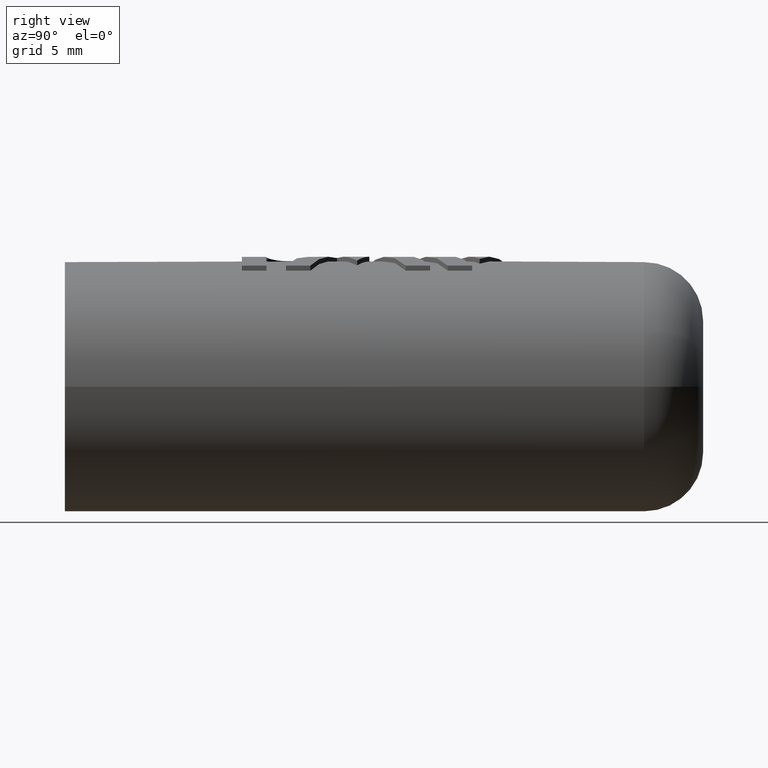
[diagram: clean part render]
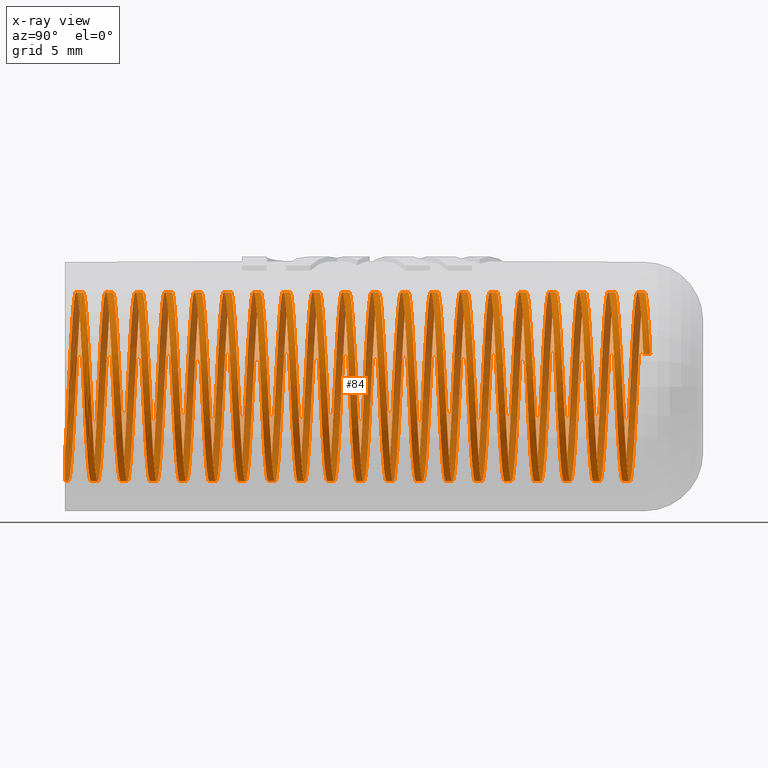
[diagram: x-ray — body ghosted, one internal face saturated and labeled with its STEP entity id]
A machine part, right view, then the same camera in x-ray: the body is ghosted and one INTERNAL B-rep face — a face not visible from any outside direction — is saturated and labeled: STEP entity #84.
In plain terms, the highlighted face is a freeform B-spline surface patch.
Its self-contained STEP definition (entity closure, byte-faithful):
#84=ADVANCED_FACE('',(#169),#170,.F.);
#169=FACE_OUTER_BOUND('',#341,.T.);
#170=B_SPLINE_SURFACE_WITH_KNOTS('',1,3,((#342,#343,#344,#345,#346,#347,#348,#349,#350,#351,#352,#353,#354,#355,#356,#357,#358,#359,#360,#361,#362,#363,#364,#365,#366,#367,#368,#369,#370,#371,#372,#373,#374,#375,#376,#377,#378,#379,#380,#381,#382,#383,#384,#385,#386,#387,#388,#389,#390,#391,#392,#393,#394,#395,#396,#397,#398,#399,#400,#401,#402,#403,#404,#405,#406,#407,#408,#409,#410,#411,#412,#413,#414,#415,#416,#417,#418,#419,#420,#421,#422,#423,#424,#425,#426,#427,#428,#429,#430,#431,#432,#433,#434,#435,#436,#437,#438,#439,#440,#441,#442,#443,#444,#445,#446,#447,#448,#449,#450,#451,#452,#453,#454,#455,#456,#457,#458,#459,#460,#461,#462,#463,#464,#465,#466,#467,#468,#469,#470,#471,#472,#473,#474,#475,#476,#477,#478,#479,#480,#481,#482,#483,#484,#485,#486,#487,#488,#489,#490,#491,#492,#493,#494,#495,#496,#497,#498,#499,#500,#501,#502,#503,#504,#505,#506,#507,#508,#509,#510,#511,#512,#513,#514,#515,#516,#517,#518,#519,#520,#521,#522,#523,#524,#525,#526,#527,#528,#529,#530,#531,#532,#533,#534,#535,#536,#537,#538,#539,#540,#541,#542,#543,#544,#545,#546,#547,#548,#549,#550,#551,#552,#553,#554,#555,#556,#557,#558,#559,#560,#561,#562,#563,#564,#565,#566,#567,#568,#569,#570,#571,#572,#573,#574,#575,#576,#577,#578,#579,#580,#581,#582,#583,#584,#585,#586,#587,#588,#589,#590,#591,#592,#593,#594,#595,#596,#597,#598,#599,#600,#601,#602,#603,#604,#605,#606,#607,#608,#609,#610,#611,#612,#613,#614,#615,#616,#617,#618),(#619,#620,#621,#622,#623,#624,#625,#626,#627,#628,#629,#630,#631,#632,#633,#634,#635,#636,#637,#638,#639,#640,#641,#642,#643,#644,#645,#646,#647,#648,#649,#650,#651,#652,#653,#654,#655,#656,#657,#658,#659,#660,#661,#662,#663,#664,#665,#666,#667,#668,#669,#670,#671,#672,#673,#674,#675,#676,#677,#678,#679,#680,#681,#682,#683,#684,#685,#686,#687,#688,#689,#690,#691,#692,#693,#694,#695,#696,#697,#698,#699,#700,#701,#702,#703,#704,#705,#706,#707,#708,#709,#710,#711,#712,#713,#714,#715,#716,#717,#718,#719,#720,#721,#722,#723,#724,#725,#726,#727,#728,#729,#730,#731,#732,#733,#734,#735,#736,#737,#738,#739,#740,#741,#742,#743,#744,#745,#746,#747,#748,#749,#750,#751,#752,#753,#754,#755,#756,#757,#758,#759,#760,#761,#762,#763,#764,#765,#766,#767,#768,#769,#770,#771,#772,#773,#774,#775,#776,#777,#778,#779,#780,#781,#782,#783,#784,#785,#786,#787,#788,#789,#790,#791,#792,#793,#794,#795,#796,#797,#798,#799,#800,#801,#802,#803,#804,#805,#806,#807,#808,#809,#810,#811,#812,#813,#814,#815,#816,#817,#818,#819,#820,#821,#822,#823,#824,#825,#826,#827,#828,#829,#830,#831,#832,#833,#834,#835,#836,#837,#838,#839,#840,#841,#842,#843,#844,#845,#846,#847,#848,#849,#850,#851,#852,#853,#854,#855,#856,#857,#858,#859,#860,#861,#862,#863,#864,#865,#866,#867,#868,#869,#870,#871,#872,#873,#874,#875,#876,#877,#878,#879,#880,#881,#882,#883,#884,#885,#886,#887,#888,#889,#890,#891,#892,#893,#894,#895)),.UNSPECIFIED.,.F.,.F.,.F.,(2,2),(4,1,1,1,1,1,1,1,1,1,1,1,1,1,1,1,1,1,1,1,1,1,1,1,1,1,1,1,1,1,1,1,1,1,1,1,1,1,1,1,1,1,1,1,1,1,1,1,1,1,1,1,1,1,1,1,1,1,1,1,1,1,1,1,1,1,1,1,1,1,1,1,1,1,1,1,1,1,1,1,1,1,1,1,1,1,1,1,1,1,1,1,1,1,1,1,1,1,1,1,1,1,1,1,1,1,1,1,1,1,1,1,1,1,1,1,1,1,1,1,1,1,1,1,1,1,1,1,1,1,1,1,1,1,1,1,1,1,1,1,1,1,1,1,1,1,1,1,1,1,1,1,1,1,1,1,1,1,1,1,1,1,1,1,1,1,1,1,1,1,1,1,1,1,1,1,1,1,1,1,1,1,1,1,1,1,1,1,1,1,1,1,1,1,1,1,1,1,1,1,1,1,1,1,1,1,1,1,1,1,1,1,1,1,1,1,1,1,1,1,1,1,1,1,1,1,1,1,1,1,1,1,1,1,1,1,1,1,1,1,1,1,1,1,1,1,1,1,1,1,1,1,1,1,1,1,1,1,1,1,1,1,1,1,1,1,1,1,1,1,1,1,1,1,4),(0.666666666666667,1.0),(0.0,1.0,2.0,3.0,4.0,5.0,6.0,7.0,8.0,9.0,10.0,11.0,12.0,13.0,14.0,15.0,16.0,17.0,18.0,19.0,20.0,21.0,22.0,23.0,24.0,25.0,26.0,27.0,28.0,29.0,30.0,31.0,32.0,33.0,34.0,35.0,36.0,37.0,38.0,39.0,40.0,41.0,42.0,43.0,44.0,45.0,46.0,47.0,48.0,49.0,50.0,51.0,52.0,53.0,54.0,55.0,56.0,57.0,58.0,59.0,60.0,61.0,62.0,63.0,64.0,65.0,66.0,67.0,68.0,69.0,70.0,71.0,72.0,73.0,74.0,75.0,76.0,77.0,78.0,79.0,80.0,81.0,82.0,83.0,84.0,85.0,86.0,87.0,88.0,89.0,90.0,91.0,92.0,93.0,94.0,95.0,96.0,97.0,98.0,99.0,100.0,101.0,102.0,103.0,104.0,105.0,106.0,107.0,108.0,109.0,110.0,111.0,112.0,113.0,114.0,115.0,116.0,117.0,118.0,119.0,120.0,121.0,122.0,123.0,124.0,125.0,126.0,127.0,128.0,129.0,130.0,131.0,132.0,133.0,134.0,135.0,136.0,137.0,138.0,139.0,140.0,141.0,142.0,143.0,144.0,145.0,146.0,147.0,148.0,149.0,150.0,151.0,152.0,153.0,154.0,155.0,156.0,157.0,158.0,159.0,160.0,161.0,162.0,163.0,164.0,165.0,166.0,167.0,168.0,169.0,170.0,171.0,172.0,173.0,174.0,175.0,176.0,177.0,178.0,179.0,180.0,181.0,182.0,183.0,184.0,185.0,186.0,187.0,188.0,189.0,190.0,191.0,192.0,193.0,194.0,195.0,196.0,197.0,198.0,199.0,200.0,201.0,202.0,203.0,204.0,205.0,206.0,207.0,208.0,209.0,210.0,211.0,212.0,213.0,214.0,215.0,216.0,217.0,218.0,219.0,220.0,221.0,222.0,223.0,224.0,225.0,226.0,227.0,228.0,229.0,230.0,231.0,232.0,233.0,234.0,235.0,236.0,237.0,238.0,239.0,240.0,241.0,242.0,243.0,244.0,245.0,246.0,247.0,248.0,249.0,250.0,251.0,252.0,253.0,254.0,255.0,256.0,257.0,258.0,259.0,260.0,261.0,262.0,263.0,264.0,265.0,266.0,267.0,268.0,269.0,270.0,271.0,272.0,273.0,274.0),.UNSPECIFIED.);
#341=EDGE_LOOP('',(#2177,#2178,#2179,#2180,#2181));
#342=CARTESIAN_POINT('',(3.64361005392327E-16,-0.144337567297412,-4.0));
#343=CARTESIAN_POINT('',(-0.597070111613894,-0.114641834373334,-4.0));
#344=CARTESIAN_POINT('',(-1.8083539976312,-0.0543731201324945,-3.72339636877842));
#345=CARTESIAN_POINT('',(-3.24934158822925,0.0353247770429011,-2.56189500785833));
#346=CARTESIAN_POINT('',(-4.04235906693021,0.12521162520807,-0.886678269261163));
#347=CARTESIAN_POINT('',(-4.02385235722874,0.215047844030282,0.966323689336222));
#348=CARTESIAN_POINT('',(-3.19875082561239,0.304897628985413,2.62556640897808));
#349=CARTESIAN_POINT('',(-1.73217590066644,0.394743778892369,3.75833511968926));
#350=CARTESIAN_POINT('',(0.0817122786090848,0.484590902812377,4.13749338070035));
#351=CARTESIAN_POINT('',(1.87922045427397,0.574437765744981,3.68701225120617));
#352=CARTESIAN_POINT('',(3.29991112249387,0.664284698609324,2.4972213275464));
#353=CARTESIAN_POINT('',(4.0589127444237,0.754131612735424,0.80669423493409));
#354=CARTESIAN_POINT('',(4.00403192810951,0.84397853188244,-1.04558903090557));
#355=CARTESIAN_POINT('',(3.1462733380834,0.933825449684103,-2.68821357480803));
#356=CARTESIAN_POINT('',(1.65763240837024,1.02367236784625,-3.79180470656254));
#357=CARTESIAN_POINT('',(-0.163392546563175,1.11351928591181,-4.13507327754279));
#358=CARTESIAN_POINT('',(-1.95165446454508,1.20336620400324,-3.64918798995723));
#359=CARTESIAN_POINT('',(-3.34857583745119,1.29321312208775,-2.43157726501685));
#360=CARTESIAN_POINT('',(-4.07404971962775,1.38306004017411,-0.726393155914362));
#361=CARTESIAN_POINT('',(-3.98260602421276,1.47290695825997,1.12444537032571));
#362=CARTESIAN_POINT('',(-3.09258079699101,1.56275387634597,2.74981311165488));
#363=CARTESIAN_POINT('',(-1.58243952135966,1.65260079443194,3.82379566611304));
#364=CARTESIAN_POINT('',(0.245008304123483,1.7424477125179,4.1310409179596));
#365=CARTESIAN_POINT('',(2.02332771830431,1.83229463060387,3.60994086922313));
#366=CARTESIAN_POINT('',(3.39593485795634,1.92214154868985,2.36498511104467));
#367=CARTESIAN_POINT('',(4.0875982024393,2.01198846677581,0.645808849707813));
#368=CARTESIAN_POINT('',(3.95962726372213,2.10183538486179,-1.20286327873717));
#369=CARTESIAN_POINT('',(3.03768243292724,2.19168230294776,-2.8103404725462));
#370=CARTESIAN_POINT('',(1.50662962718118,2.28152922103373,-3.85429569460438));
#371=CARTESIAN_POINT('',(-0.326528530745996,2.37137613911969,-4.12539782973167));
#372=CARTESIAN_POINT('',(-2.09421205907705,2.46122305720566,-3.569286201268));
#373=CARTESIAN_POINT('',(-3.44196977403284,2.55106997529163,-2.29747082888777));
#374=CARTESIAN_POINT('',(-4.09955289529877,2.6409168933776,-0.564972737035535));
#375=CARTESIAN_POINT('',(-3.93510461025524,2.73076381146356,1.28081218033479));
#376=CARTESIAN_POINT('',(-2.9815996501649,2.82061072954954,2.86977205733879));
#377=CARTESIAN_POINT('',(-1.43023228505776,2.91045764763551,3.88329289981125));
#378=CARTESIAN_POINT('',(0.407921441065348,3.00030456572147,4.11814621314799));
#379=CARTESIAN_POINT('',(2.164279848424,3.09015148380745,3.52723983769912));
#380=CARTESIAN_POINT('',(3.48666263627363,3.17999840189342,2.22906074294967));
#381=CARTESIAN_POINT('',(4.10990913696633,3.26984531997938,0.483916336598215));
#382=CARTESIAN_POINT('',(3.90904762540753,3.35969223806535,-1.35826168216647));
#383=CARTESIAN_POINT('',(2.92435431586672,3.44953915615132,-2.92808469314288));
#384=CARTESIAN_POINT('',(1.35327728297505,3.53938607423729,-3.91077597547208));
#385=CARTESIAN_POINT('',(-0.48915529928065,3.62923299232326,-4.10928889567668));
#386=CARTESIAN_POINT('',(-2.23350376630695,3.71907991040923,-3.48381817275796));
#387=CARTESIAN_POINT('',(-3.52999601854451,3.8089268284952,-2.1597815269156));
#388=CARTESIAN_POINT('',(-4.11866288945363,3.89877374658117,-0.402671252988685));
#389=CARTESIAN_POINT('',(-3.88146646902316,3.98862066466714,1.43518158600048));
#390=CARTESIAN_POINT('',(-2.86596875048453,4.07846758275311,2.98525564335655));
#391=CARTESIAN_POINT('',(-1.27579462635506,4.16831450083908,3.9367342056976));
#392=CARTESIAN_POINT('',(0.570198431606754,4.25816141892505,4.09882933086256));
#393=CARTESIAN_POINT('',(2.30185682172063,4.34800833701102,3.43903813692785));
#394=CARTESIAN_POINT('',(3.57195302478429,4.43785525509699,2.08966019335209));
#395=CARTESIAN_POINT('',(4.12581073959673,4.52770217318296,0.321269164368894));
#396=CARTESIAN_POINT('',(3.85237189523397,4.61754909126893,-1.51154190009985));
#397=CARTESIAN_POINT('',(2.8064657190561,4.70739600935489,-3.04126261653098));
#398=CARTESIAN_POINT('',(1.19781452635693,4.79724292744087,-3.96115746914892));
#399=CARTESIAN_POINT('',(-0.651019238624273,4.88708984552683,-4.08677159698057));
#400=CARTESIAN_POINT('',(-2.36931236321652,4.9769367636128,-3.39291719033273));
#401=CARTESIAN_POINT('',(-3.61251729559275,5.06678368169877,-2.01872408317462));
#402=CARTESIAN_POINT('',(-4.13134990038693,5.15663059978474,-0.239741810118483));
#403=CARTESIAN_POINT('',(-3.82177524826632,5.24647751787071,1.58731285091656));
#404=CARTESIAN_POINT('',(-2.74586842232895,5.33632443595668,3.09608377506208));
#405=CARTESIAN_POINT('',(-1.11936738809725,5.42617135404265,3.98403624298403));
#406=CARTESIAN_POINT('',(0.7315862076003,5.51601827212862,4.0731203954456));
#407=CARTESIAN_POINT('',(2.43584408929451,5.60586519021459,3.34547331592929));
#408=CARTESIAN_POINT('',(3.65167301460924,5.69571210830056,1.94700085498714));
#409=CARTESIAN_POINT('',(4.13527821205745,5.78555902638653,0.158120978459216));
#410=CARTESIAN_POINT('',(3.78968845801798,5.8754059444725,-1.66246489470042));
#411=CARTESIAN_POINT('',(2.68420048771408,5.96525286255847,-3.14969774370518));
#412=CARTESIAN_POINT('',(1.04048379879488,6.05509978064443,-4.00536160657079));
#413=CARTESIAN_POINT('',(-0.811867924775603,6.14494669873041,-4.05788104897944));
#414=CARTESIAN_POINT('',(-2.50142605865828,6.23479361681637,-3.29672501249517));
#415=CARTESIAN_POINT('',(-3.68940491467968,6.32464053490234,-1.87451847429772));
#416=CARTESIAN_POINT('',(-4.13759414292554,6.41448745298831,-0.0764384940605029));
#417=CARTESIAN_POINT('',(-3.75612403540645,6.50433437107428,1.73696872901844));
#418=CARTESIAN_POINT('',(-2.62148596007343,6.59418128916025,3.20208361790942));
#419=CARTESIAN_POINT('',(-0.961194515844756,6.68402820724622,4.02512524496517));
#420=CARTESIAN_POINT('',(0.891833087613093,6.77387512533219,4.0410594995353));
#421=CARTESIAN_POINT('',(2.56603270032971,6.86372204341816,3.24669128741626));
#422=CARTESIAN_POINT('',(3.72569828380931,6.95356896150413,1.80130520261456));
#423=CARTESIAN_POINT('',(4.13829678998967,7.0434158795901,-0.00527379436925975));
#424=CARTESIAN_POINT('',(3.72109506749094,7.13326279767607,-1.81079530418008));
#425=CARTESIAN_POINT('',(2.5577492923447,7.22310971576204,-3.25322097196857));
#426=CARTESIAN_POINT('',(0.881530454825215,7.312956633848,-4.04331945215334));
#427=CARTESIAN_POINT('',(-0.971450517003019,7.40280355193398,-4.02266230598102));
#428=CARTESIAN_POINT('',(-2.62963882361944,7.49265047001994,-3.19539164927546));
#429=CARTESIAN_POINT('',(-3.76053897089909,7.58249738810591,-1.72738958642665));
#430=CARTESIAN_POINT('',(-4.13738587928171,7.67234430619188,0.0869840265009512));
#431=CARTESIAN_POINT('',(-3.68461521236945,7.76219122427785,1.88391583456417));
#432=CARTESIAN_POINT('',(-2.4930153360069,7.85203814236382,3.30308986698521));
#433=CARTESIAN_POINT('',(-0.801522677443855,7.94188506044979,4.0599371340563));
#434=CARTESIAN_POINT('',(1.05068916941982,8.03173197853577,4.00269664154178));
#435=CARTESIAN_POINT('',(2.692219627949,8.12157889662173,3.14284610024609));
#436=CARTESIAN_POINT('',(3.79391339126325,8.2114258147077,1.65280044607306));
#437=CARTESIAN_POINT('',(4.13486176597358,8.30127273279367,-0.168660342807084));
#438=CARTESIAN_POINT('',(3.64669869385361,8.39111965087964,-1.95630180984231));
#439=CARTESIAN_POINT('',(2.42730933139037,8.48096656896561,-3.35167085864516));
#440=CARTESIAN_POINT('',(0.721202379426267,8.57081348705158,-4.07497181129587));
#441=CARTESIAN_POINT('',(-1.12951814902643,8.66066040513755,-3.98117029100312));
#442=CARTESIAN_POINT('',(-2.75375071252056,8.75050732322352,-3.08907512829301));
#443=CARTESIAN_POINT('',(-3.82580853192617,8.84035424130949,-1.57756686450589));
#444=CARTESIAN_POINT('',(-4.13072543423896,8.93020115939545,0.250270896984302));
#445=CARTESIAN_POINT('',(-3.60736029592248,9.02004807748143,2.02792500609565));
#446=CARTESIAN_POINT('',(-2.36065689783561,9.10989499556739,3.39894500479885));
#447=CARTESIAN_POINT('',(-0.640600878352585,9.19974191365336,4.08841762172113));
#448=CARTESIAN_POINT('',(1.20790671972072,9.28958883173933,3.95809164767562));
#449=CARTESIAN_POINT('',(2.81420808583113,9.37943574982531,3.03409969918403));
#450=CARTESIAN_POINT('',(3.85621195669613,9.46928266791127,1.50171817595039));
#451=CARTESIAN_POINT('',(4.12497849686942,9.55912958599724,-0.331783868370469));
#452=CARTESIAN_POINT('',(3.56661535695823,9.64897650408321,-2.0987574968194));
#453=CARTESIAN_POINT('',(2.29308402370394,9.73882342216918,-3.44489387284713));
#454=CARTESIAN_POINT('',(0.559749601446277,9.82867034025515,-4.10026932269414));
#455=CARTESIAN_POINT('',(-1.28582431711979,9.91851725834112,-3.93346971012227));
#456=CARTESIAN_POINT('',(-2.8735681750271,10.0083641764271,-2.97794124831525));
#457=CARTESIAN_POINT('',(-3.88511181101443,10.0982110945131,-1.42528395446738));
#458=CARTESIAN_POINT('',(-4.11762319464563,10.188058012599,0.413167474351824));
#459=CARTESIAN_POINT('',(-3.52447976376558,10.277904930685,2.16877166381177));
#460=CARTESIAN_POINT('',(-2.22461705624443,10.367751848771,3.48949954692823));
#461=CARTESIAN_POINT('',(-0.478680073320783,10.4575987668569,4.11052229313399));
#462=CARTESIAN_POINT('',(1.36324056047743,10.5474456849429,3.90731407864983));
#463=CARTESIAN_POINT('',(2.93180783509536,10.6372926030289,2.92062167235324));
#464=CARTESIAN_POINT('',(3.91249682657745,10.7271395211148,1.34829400242204));
#465=CARTESIAN_POINT('',(4.10866239546366,10.8169864392008,-0.494389982755296));
#466=CARTESIAN_POINT('',(3.48096994537736,10.9068333572868,-2.23794020794244));
#467=CARTESIAN_POINT('',(2.15528269132087,10.9966802753727,-3.53274463490338));
#468=CARTESIAN_POINT('',(0.397423903687467,11.0865271934587,-4.11917253531869));
#469=CARTESIAN_POINT('',(-1.4401252645296,11.1763741115447,-3.87963495156561));
#470=CARTESIAN_POINT('',(-2.98890435788785,11.2662210296307,-2.8621633206973));
#471=CARTESIAN_POINT('',(-3.93835632573043,11.3560679477166,-1.27077833886369));
#472=CARTESIAN_POINT('',(-4.09809959321674,11.4459148658026,0.575419724221153));
#473=CARTESIAN_POINT('',(-3.43610286664875,11.5357617838886,2.30623615979679));
#474=CARTESIAN_POINT('',(-2.08510796300286,11.6256087019745,3.5746122751381));
#475=CARTESIAN_POINT('',(-0.316012775030877,11.7154556200605,4.12621667644384));
#476=CARTESIAN_POINT('',(1.51644845126404,11.8053025381465,3.8504431212011));
#477=CARTESIAN_POINT('',(3.04483548097573,11.8951494562324,2.80258898676514));
#478=CARTESIAN_POINT('',(3.96268022563052,11.9849963743184,1.19276718782116));
#479=CARTESIAN_POINT('',(4.08593890643298,12.0748432924044,-0.656225104551171));
#480=CARTESIAN_POINT('',(3.38989602164243,12.1646902104903,-2.37363289019148));
#481=CARTESIAN_POINT('',(2.01412023302494,12.2545371285763,-3.61508614307674));
#482=CARTESIAN_POINT('',(0.234478430255398,12.3443840466623,-4.1316519699378));
#483=CARTESIAN_POINT('',(-1.59218036160901,12.4342309647483,-3.81974996970385));
#484=CARTESIAN_POINT('',(-3.0995793963295,12.5240778828342,-2.74192189910576));
#485=CARTESIAN_POINT('',(-3.98545904217847,12.6139248009202,-1.11429096651809));
#486=CARTESIAN_POINT('',(-4.07218507666953,12.7037717190062,0.736774617027419));
#487=CARTESIAN_POINT('',(-3.34236742680763,12.7936186370921,2.44010412055744));
#488=CARTESIAN_POINT('',(-1.94234718011812,12.8834655551781,3.6541504576075));
#489=CARTESIAN_POINT('',(-0.152852660308478,12.9733124732641,4.13547629653257));
#490=CARTESIAN_POINT('',(1.66729146703657,13.06315939135,3.78756746459953));
#491=CARTESIAN_POINT('',(3.15311475882223,13.153006309436,2.68018571234223));
#492=CARTESIAN_POINT('',(4.00668389371634,13.242853227522,1.0353802735131));
#493=CARTESIAN_POINT('',(4.05684346666376,13.332700145608,-0.817036854697212));
#494=CARTESIAN_POINT('',(3.29353561395524,13.4225470636939,-2.50562393318599));
#495=CARTESIAN_POINT('',(1.86981678921746,13.5123939817799,-3.69178998721574));
#496=CARTESIAN_POINT('',(0.0711672917849971,13.6022408998659,-4.13768816509003));
#497=CARTESIAN_POINT('',(-1.74175248107589,13.6920878179518,-3.75390815412577));
#498=CARTESIAN_POINT('',(-3.20542069455231,13.7819347360378,-2.61740449794865));
#499=CARTESIAN_POINT('',(-4.02634650449061,13.8717816541238,-0.956065876769059));
#500=CARTESIAN_POINT('',(-4.03992005824233,13.9616285722097,0.89698052261865));
#501=CARTESIAN_POINT('',(-3.24341962303219,14.0514754902957,2.57016678133458));
#502=CARTESIAN_POINT('',(-1.79655734055081,14.1413224083817,3.72799005592274));
#503=CARTESIAN_POINT('',(0.0105458254820523,14.2311693264676,4.13828671318347));
#504=CARTESIAN_POINT('',(1.81553437073241,14.3210162445536,3.71878516233935));
#505=CARTESIAN_POINT('',(3.25647680898221,14.4108631626396,2.5536027348644));
#506=CARTESIAN_POINT('',(4.04443920787898,14.5007100807256,0.876378701656532));
#507=CARTESIAN_POINT('',(4.0214214499888,14.5905569988115,-0.976574450063034));
#508=CARTESIAN_POINT('',(3.19203899469757,14.6804039168975,-2.63370749918743));
#509=CARTESIAN_POINT('',(1.72259739861191,14.7702508349835,-3.76273654900811));
#510=CARTESIAN_POINT('',(-0.0922548308404538,14.8600977530694,-4.13727170743385));
#511=CARTESIAN_POINT('',(-1.88860836780832,14.9499446711554,-3.68221218399895));
#512=CARTESIAN_POINT('',(-3.3062631948905,15.0397915892414,-2.48880529994983));
#513=CARTESIAN_POINT('',(-4.06095494937971,15.1296385073274,-0.796349818895265));
#514=CARTESIAN_POINT('',(-4.00135485467082,15.2194854254133,1.05578760266836));
#515=CARTESIAN_POINT('',(-3.13941376270343,15.3093323434993,2.69622131166829));
#516=CARTESIAN_POINT('',(-1.64796580102294,15.3991792615852,3.79601591851309));
#517=CARTESIAN_POINT('',(0.173927865241023,15.4890261796712,4.13464354360066));
#518=CARTESIAN_POINT('',(1.96094598011892,15.5788730977572,3.6442034792258));
#519=CARTESIAN_POINT('',(3.35476044013408,15.6687200158431,2.42303745828604));
#520=CARTESIAN_POINT('',(4.07588728936202,15.7585669339291,0.716010432440152));
#521=CARTESIAN_POINT('',(3.97972809642774,15.8484138520151,-1.1345890945402));
#522=CARTESIAN_POINT('',(3.08556444608369,15.9382607701011,-2.75768384410001));
#523=CARTESIAN_POINT('',(1.57269164729037,16.0281076881871,-3.82781518852322));
#524=CARTESIAN_POINT('',(-0.255533083660057,16.117954606273,-4.13040324642778));
#525=CARTESIAN_POINT('',(-2.03251900260247,16.2078015243589,-3.60477386794315));
#526=CARTESIAN_POINT('',(-3.40194963521683,16.2976484424449,-2.35632485332435));
#527=CARTESIAN_POINT('',(-4.08923040557723,16.3874953605309,-0.635391867314002));
#528=CARTESIAN_POINT('',(-3.95654960771999,16.4773422786169,1.21294820029413));
#529=CARTESIAN_POINT('',(-3.03051204115348,16.5671891967029,2.81807113170867));
#530=CARTESIAN_POINT('',(-1.49680428745891,16.6570361147888,3.85812196022761));
#531=CARTESIAN_POINT('',(0.337038667515851,16.7468830328748,4.1245524692438));
#532=CARTESIAN_POINT('',(2.1032995283174,16.8367299509607,3.56393872409807));
#533=CARTESIAN_POINT('',(3.44781238066272,16.9265768690467,2.28869349688744));
#534=CARTESIAN_POINT('',(4.10097909542869,17.0164237871327,0.554525557393802));
#535=CARTESIAN_POINT('',(3.93182842604113,17.1062707052186,-1.29083436703584));
#536=CARTESIAN_POINT('',(2.9742780133224,17.1961176233047,-2.87735962896767));
#537=CARTESIAN_POINT('',(1.42033331066764,17.2859645413906,-3.88692441675341));
#538=CARTESIAN_POINT('',(-0.418412837075133,17.3758114594766,-4.11709349331743));
#539=CARTESIAN_POINT('',(-2.17325995932352,17.4656583775626,-3.52171396966691));
#540=CARTESIAN_POINT('',(-3.49233079418995,17.5555052956485,-2.22016975902712));
#541=CARTESIAN_POINT('',(-4.11112877800046,17.6453522137345,-0.473443033154457));
#542=CARTESIAN_POINT('',(-3.90557419039406,17.7351991318205,1.3682172262743));
#543=CARTESIAN_POINT('',(-2.91688428872517,17.8250460499065,2.93552621877821));
#544=CARTESIAN_POINT('',(-1.34330853361295,17.9148929679924,3.91421132777326));
#545=CARTESIAN_POINT('',(0.499623863844145,18.0047398860783,4.10802922696801));
#546=CARTESIAN_POINT('',(2.24237301744262,18.0945868041644,3.47811606844729));
#547=CARTESIAN_POINT('',(3.5354875176834,18.1844337222503,2.15078035774247));
#548=CARTESIAN_POINT('',(4.11967549584335,18.2742806403363,0.392175909374631));
#549=CARTESIAN_POINT('',(3.87779713753271,18.3641275584223,-1.44506660576216));
#550=CARTESIAN_POINT('',(2.85835324567222,18.4539744765082,-2.99254822148301));
#551=CARTESIAN_POINT('',(1.26575998892272,18.5438213945942,-3.93997205388417));
#552=CARTESIAN_POINT('',(-0.580640082939978,18.6336683126802,-4.09736320443153));
#553=CARTESIAN_POINT('',(-2.31061175489459,18.7235152307661,-3.43316201963859));
#554=CARTESIAN_POINT('',(-3.57726572396267,18.8133621488521,-2.08055234856224));
#555=CARTESIAN_POINT('',(-4.12661591651805,18.9032090669381,-0.310755872809976));
#556=CARTESIAN_POINT('',(-3.84850809797069,18.993055985024,1.52135254126056));
#557=CARTESIAN_POINT('',(-2.79870770592437,19.08290290311,3.04840340370917));
#558=CARTESIAN_POINT('',(-1.18771791344644,19.1727498211959,3.96419655075582));
#559=CARTESIAN_POINT('',(0.661429905436862,19.262596739282,4.08509958448258));
#560=CARTESIAN_POINT('',(2.37794956480444,19.3524436573679,3.38686935121394));
#561=CARTESIAN_POINT('',(3.61764912334315,19.4422905754538,2.00951311399565));
#562=CARTESIAN_POINT('',(4.13194733389438,19.5321374935398,0.22921466983816));
#563=CARTESIAN_POINT('',(3.81771849175825,19.6219844116258,-1.5970452882223));
#564=CARTESIAN_POINT('',(2.73797092579426,19.7118313297118,-3.10306998703723));
#565=CARTESIAN_POINT('',(1.10921273646554,19.8016782477977,-3.98687537304699));
#566=CARTESIAN_POINT('',(-0.741961830683108,19.8915251658837,-4.07124314881283));
#567=CARTESIAN_POINT('',(-2.44436019157672,19.9813720839697,-3.33925611308582));
#568=CARTESIAN_POINT('',(-3.65662196998758,20.0712190020557,-1.93769035285572));
#569=CARTESIAN_POINT('',(-4.13566766920655,20.1610659201416,-0.147584094080686));
#570=CARTESIAN_POINT('',(-3.78544032402963,20.2509128382276,1.67211533338955));
#571=CARTESIAN_POINT('',(-2.67616658707878,20.3407597563135,3.15652665649272));
#572=CARTESIAN_POINT('',(-1.03027506782853,20.4306066743996,4.00799967808842));
#573=CARTESIAN_POINT('',(0.822204458583261,20.5204535924855,4.0557993001666));
#574=CARTESIAN_POINT('',(2.50981774113265,20.6103005105714,3.29034087006829));
#575=CARTESIAN_POINT('',(3.69416906804536,20.7001474286574,1.86511206945931));
#576=CARTESIAN_POINT('',(4.13777547186356,20.7899943467434,0.0658959740062796));
#577=CARTESIAN_POINT('',(3.75168618032204,20.8798412648294,-1.74653340630132));
#578=CARTESIAN_POINT('',(2.613318787825,20.9696881829153,-3.20875256885706));
#579=CARTESIAN_POINT('',(0.950935686016374,21.0595351010013,-4.02756122933053));
#580=CARTESIAN_POINT('',(-0.902126501841549,21.1493820190873,-4.03877406023427));
#581=CARTESIAN_POINT('',(-2.57429669100656,21.2392289371733,-3.2401426946384));
#582=CARTESIAN_POINT('',(-3.73027577757769,21.3290758552593,-1.79180656270791));
#583=CARTESIAN_POINT('',(-4.13826992001491,21.4189227733452,0.0158178394793069));
#584=CARTESIAN_POINT('',(-3.71646922166862,21.5087696914312,1.82027049070621));
#585=CARTESIAN_POINT('',(-2.54945203293438,21.5986166095172,3.25972736079457));
#586=CARTESIAN_POINT('',(-0.871225526141466,21.6884635276031,4.04555239955503));
#587=CARTESIAN_POINT('',(0.981696798160837,21.7783104456891,4.02017406730441));
#588=CARTESIAN_POINT('',(2.63777190029724,21.8681573637751,3.18868115949967));
#589=CARTESIAN_POINT('',(3.76492802026567,21.958004281861,1.71780241505371));
#590=CARTESIAN_POINT('',(4.13715082087096,22.047851199947,-0.0975254854522368));
#591=CARTESIAN_POINT('',(3.67980317946661,22.1376981180329,-1.89329783587617));
#592=CARTESIAN_POINT('',(2.48459122460795,22.2275450361189,-3.30943115679222));
#593=CARTESIAN_POINT('',(0.791175667885711,22.3173919542049,-4.06196617384876));
#594=CARTESIAN_POINT('',(-1.06088432239325,22.4072388722909,-4.00000657367537));
#595=CARTESIAN_POINT('',(-2.7002186194706,22.4970857903768,-3.13597632995057));
#596=CARTESIAN_POINT('',(-3.7981122848997,22.5869327084628,-1.64312848135502));
#597=CARTESIAN_POINT('',(-4.13441861077817,22.6767796265487,0.179195105393401));
#598=CARTESIAN_POINT('',(-3.64170235012361,22.7666265446348,1.96558696781674));
#599=CARTESIAN_POINT('',(-2.41876165263673,22.8564734627207,3.35784457690887));
#600=CARTESIAN_POINT('',(-0.710817323382979,22.9463203808066,4.07679615234057));
#601=CARTESIAN_POINT('',(1.13965819863916,23.0361672988929,3.97827944282156));
#602=CARTESIAN_POINT('',(2.76161250000159,23.1260142169774,3.08204875608358));
#603=CARTESIAN_POINT('',(3.82981563267862,23.2158611350689,1.56781387753986));
#604=CARTESIAN_POINT('',(4.13007435493246,23.3057080531345,-0.260794855290348));
#605=CARTESIAN_POINT('',(3.6021815899176,23.3955549712966,-2.03710970156508));
#606=CARTESIAN_POINT('',(2.35198898292835,23.4854018890983,-3.4049487398526));
#607=CARTESIAN_POINT('',(0.630181830949154,23.5752488082453,-4.09003656949699));
#608=CARTESIAN_POINT('',(-1.2179877334585,23.6650957223716,-3.95500108347922));
#609=CARTESIAN_POINT('',(-2.82192952900238,23.754942655235,-3.02691969815672));
#610=CARTESIAN_POINT('',(-3.8600259673616,23.8447895181704,-1.49188711085395));
#611=CARTESIAN_POINT('',(-4.12411878702246,23.9346366420827,0.342289784127683));
#612=CARTESIAN_POINT('',(-3.56125990482304,24.0244827920101,2.10784957710355));
#613=CARTESIAN_POINT('',(-2.28428541148245,24.1143325769167,3.45068340298266));
#614=CARTESIAN_POINT('',(-0.549354308677829,24.2041687958447,4.1018370720078));
#615=CARTESIAN_POINT('',(1.29604874447645,24.2940556438488,3.92960394395907));
#616=CARTESIAN_POINT('',(2.88036454525473,24.3837535412774,2.97276561350344));
#617=CARTESIAN_POINT('',(3.55456182874912,24.4440222553341,1.92913924010879));
#618=CARTESIAN_POINT('',(3.75877048314393,24.4737179882582,1.36808057330184));
#619=CARTESIAN_POINT('',(1.25497714266614E-16,0.144337567297412,-4.0));
#620=CARTESIAN_POINT('',(-0.597066162270913,0.174033300221491,-4.0));
#621=CARTESIAN_POINT('',(-1.80834321573786,0.234302014278136,-3.72340302955286));
#622=CARTESIAN_POINT('',(-3.24934505140723,0.323999911706747,-2.56189114548864));
#623=CARTESIAN_POINT('',(-4.04235626762255,0.413886759710953,-0.886686713204304));
#624=CARTESIAN_POINT('',(-4.02385335428296,0.503722978638858,0.966322912880238));
#625=CARTESIAN_POINT('',(-3.19875331639788,0.593572763545513,2.62556263879369));
#626=CARTESIAN_POINT('',(-1.73217888294384,0.683418913472932,3.75833399038366));
#627=CARTESIAN_POINT('',(0.0817086745181402,0.773266037385272,4.13749336105163));
#628=CARTESIAN_POINT('',(1.87921736210579,0.863112900320533,3.68701386377985));
#629=CARTESIAN_POINT('',(3.29990899417986,0.952959833184016,2.49722412276272));
#630=CARTESIAN_POINT('',(4.05891206324346,1.04280674731038,0.806697677409489));
#631=CARTESIAN_POINT('',(4.00403281403508,1.13265366645732,-1.04558563540746));
#632=CARTESIAN_POINT('',(3.14627561796025,1.222500584259,-2.68821090667766));
#633=CARTESIAN_POINT('',(1.65763562387411,1.31234750242114,-3.79180330084251));
#634=CARTESIAN_POINT('',(-0.163389039891176,1.4021944204867,-4.13507341610272));
#635=CARTESIAN_POINT('',(-1.95165136993434,1.49204133857814,-3.64918964501366));
#636=CARTESIAN_POINT('',(-3.34857377540337,1.58188825666265,-2.43158010470206));
#637=CARTESIAN_POINT('',(-4.07404910362477,1.67173517474901,-0.726396610822495));
#638=CARTESIAN_POINT('',(-3.98260697777245,1.76158209283487,1.12444199296381));
#639=CARTESIAN_POINT('',(-3.0925831289085,1.85142901092087,2.7498104890587));
#640=CARTESIAN_POINT('',(-1.58244276404498,1.94127592900683,3.82379432415861));
#641=CARTESIAN_POINT('',(0.245004800884918,2.0311228470928,4.13104112573202));
#642=CARTESIAN_POINT('',(2.02332465697255,2.12096976517877,3.60994258506045));
#643=CARTESIAN_POINT('',(3.39593285238147,2.21081668326474,2.36498799089176));
#644=CARTESIAN_POINT('',(4.08759765477383,2.30066360135071,0.645812316105416));
#645=CARTESIAN_POINT('',(3.95962828378248,2.39051051943668,-1.20285992086185));
#646=CARTESIAN_POINT('',(3.03768481617364,2.48035743752265,-2.81033789650534));
#647=CARTESIAN_POINT('',(1.50663289573141,2.57020435560862,-3.85429441693884));
#648=CARTESIAN_POINT('',(-0.326525032292901,2.66005127369458,-4.12539810663554));
#649=CARTESIAN_POINT('',(-2.09420903222157,2.74989819178055,-3.56928797721724));
#650=CARTESIAN_POINT('',(-3.44196782571196,2.83974510986652,-2.29747374777377));
#651=CARTESIAN_POINT('',(-4.09955241618459,2.92959202795249,-0.564976213571081));
#652=CARTESIAN_POINT('',(-3.93510569641844,3.01943894603846,1.28080884325533));
#653=CARTESIAN_POINT('',(-2.98160208381096,3.10928586412443,2.86976952885769));
#654=CARTESIAN_POINT('',(-1.43023557819846,3.1991327822104,3.88329168693279));
#655=CARTESIAN_POINT('',(0.407917948761798,3.28897970029637,4.11814655907533));
#656=CARTESIAN_POINT('',(2.16427685722498,3.37882661838234,3.52724167306783));
#657=CARTESIAN_POINT('',(3.4866607459664,3.46867353646831,2.22906369973651));
#658=CARTESIAN_POINT('',(4.10990872659024,3.55852045455428,0.483919821916173));
#659=CARTESIAN_POINT('',(3.9090487772501,3.64836737264026,-1.35825836718405));
#660=CARTESIAN_POINT('',(2.92435679896355,3.73821429072622,-2.92808221320741));
#661=CARTESIAN_POINT('',(1.3532805994222,3.82806120881219,-3.91077482785362));
#662=CARTESIAN_POINT('',(-0.489151814488324,3.91790812689815,-4.1092893104926));
#663=CARTESIAN_POINT('',(-2.2335008119307,4.00775504498413,-3.4838200668305));
#664=CARTESIAN_POINT('',(-3.52999418698797,4.09760196307009,-2.15978452045038));
#665=CARTESIAN_POINT('',(-4.11866254797564,4.18744888115606,-0.4026747457301));
#666=CARTESIAN_POINT('',(-3.88146768609597,4.27729579924203,1.43517829440762));
#667=CARTESIAN_POINT('',(-2.86597128206394,4.36714271732801,2.98525321293365));
#668=CARTESIAN_POINT('',(-1.27579796481554,4.45698963541397,3.93673312378658));
#669=CARTESIAN_POINT('',(0.570194955684404,4.54683655349994,4.09882981440533));
#670=CARTESIAN_POINT('',(2.30185390531908,4.63668347158591,3.4390400889657));
#671=CARTESIAN_POINT('',(3.5719512526926,4.72653038967189,2.08966322246761));
#672=CARTESIAN_POINT('',(4.12581046714998,4.81637730775785,0.321272663171914));
#673=CARTESIAN_POINT('',(3.85237317706247,4.90622422584382,-1.51153863317996));
#674=CARTESIAN_POINT('',(2.80646829813103,4.99607114392979,-3.0412602365683));
#675=CARTESIAN_POINT('',(1.19781788552905,5.08591806201576,-3.96115645336721));
#676=CARTESIAN_POINT('',(-0.651015772927189,5.17576498010173,-4.08677214906166));
#677=CARTESIAN_POINT('',(-2.36930948592679,5.2656118981877,-3.39291919957479));
#678=CARTESIAN_POINT('',(-3.61251558365685,5.35545881627367,-2.0187271466898));
#679=CARTESIAN_POINT('',(-4.13134969707767,5.44530573435964,-0.239745313618898));
#680=CARTESIAN_POINT('',(-3.82177659435073,5.5351526524456,1.58730960994347));
#681=CARTESIAN_POINT('',(-2.74587104789377,5.62499957053158,3.0960814464876));
#682=CARTESIAN_POINT('',(-1.11937076667124,5.71484648861755,3.98403529372768));
#683=CARTESIAN_POINT('',(0.731582753479789,5.80469340670351,4.07312101584975));
#684=CARTESIAN_POINT('',(2.43584125223851,5.89454032478948,3.34547538159214));
#685=CARTESIAN_POINT('',(3.65167136349663,5.98438724287546,1.9470039517075));
#686=CARTESIAN_POINT('',(4.13527807796494,6.07423416096143,0.158124485290978));
#687=CARTESIAN_POINT('',(3.78968986783343,6.16408107904739,-1.6624616809378));
#688=CARTESIAN_POINT('',(2.68420315874507,6.25392799713336,-3.14969546742681));
#689=CARTESIAN_POINT('',(1.0404871954534,6.34377491521933,-4.00536072420993));
#690=CARTESIAN_POINT('',(-0.811864483578456,6.4336218333053,-4.05788173746474));
#691=CARTESIAN_POINT('',(-2.50142326294218,6.52346875139127,-3.29672713377338));
#692=CARTESIAN_POINT('',(-3.68940332503414,6.61331566947724,-1.87452160301581));
#693=CARTESIAN_POINT('',(-4.13759407810207,6.70316258756321,-0.0764420028562684));
#694=CARTESIAN_POINT('',(-3.75612550840327,6.79300950564918,1.73696554371936));
#695=CARTESIAN_POINT('',(-2.62148867552913,6.88285642373515,3.20208139481471));
#696=CARTESIAN_POINT('',(-0.961197929263426,6.97270334182112,4.02512442984384));
#697=CARTESIAN_POINT('',(0.891829660681062,7.06255025990709,4.0410602558333));
#698=CARTESIAN_POINT('',(2.56602994704358,7.15239717799306,3.24669346348273));
#699=CARTESIAN_POINT('',(3.72569675625068,7.24224409607902,1.80130836211047));
#700=CARTESIAN_POINT('',(4.13829679446051,7.332091014165,-0.00527028497760009));
#701=CARTESIAN_POINT('',(3.72109660309476,7.42193793225096,-1.81079214858653));
#702=CARTESIAN_POINT('',(2.55775205116633,7.51178485033693,-3.25321880292432));
#703=CARTESIAN_POINT('',(0.881533883673111,7.6016317684229,-4.04331870458936));
#704=CARTESIAN_POINT('',(-0.971447105672296,7.69147868650887,-4.02266312979684));
#705=CARTESIAN_POINT('',(-2.62963611383682,7.78132560459484,-3.19539387928173));
#706=CARTESIAN_POINT('',(-3.76053750602295,7.87117252268081,-1.72739277546847));
#707=CARTESIAN_POINT('',(-4.13738595304511,7.96101944076678,0.0869805178817405));
#708=CARTESIAN_POINT('',(-3.68461680998155,8.05086635885275,1.88391270990652));
#709=CARTESIAN_POINT('',(-2.49301813711879,8.14071327693872,3.30308775283715));
#710=CARTESIAN_POINT('',(-0.801526120384039,8.23056019502469,4.05993645434114));
#711=CARTESIAN_POINT('',(1.05068577502051,8.32040711311066,4.0026975325542));
#712=CARTESIAN_POINT('',(2.69221696272645,8.41025403119662,3.14284838332267));
#713=CARTESIAN_POINT('',(3.79391198964079,8.50010094928259,1.65280366341735));
#714=CARTESIAN_POINT('',(4.13486190900079,8.58994786736857,-0.168656836328362));
#715=CARTESIAN_POINT('',(3.64670035285106,8.67979478545453,-1.95629871733892));
#716=CARTESIAN_POINT('',(2.42731217370032,8.7696417035405,-3.35166880021762));
#717=CARTESIAN_POINT('',(0.721205835116308,8.85948862162648,-4.07497119969457));
#718=CARTESIAN_POINT('',(-1.12951477288204,8.94933553971244,-3.98117124886474));
#719=CARTESIAN_POINT('',(-2.75374809289728,9.03918245779841,-3.08907746354968));
#720=CARTESIAN_POINT('',(-3.82580719410387,9.12902937588438,-1.57757010889817));
#721=CARTESIAN_POINT('',(-4.13072564647421,9.21887629397035,0.250267394013277));
#722=CARTESIAN_POINT('',(-3.60736201565843,9.30872321205632,2.02792194695229));
#723=CARTESIAN_POINT('',(-2.36065978023539,9.39857013014229,3.39894300289443));
#724=CARTESIAN_POINT('',(-0.64060434544508,9.48841704822826,4.08841707847217));
#725=CARTESIAN_POINT('',(1.20790336314764,9.57826396631423,3.95809267201295));
#726=CARTESIAN_POINT('',(2.81420551282854,9.6681108844002,3.03410208571026));
#727=CARTESIAN_POINT('',(3.85621068319565,9.75795780248617,1.50172144612566));
#728=CARTESIAN_POINT('',(4.12497877822995,9.84780472057213,-0.331780370272979));
#729=CARTESIAN_POINT('',(3.56661713676213,9.9376516386581,-2.09875447222888));
#730=CARTESIAN_POINT('',(2.29308694506967,10.0274985567441,-3.44489192824638));
#731=CARTESIAN_POINT('',(0.559753078589375,10.11734547483,-4.10026884800932));
#732=CARTESIAN_POINT('',(-1.28582098142678,10.207192392916,-3.93347080053592));
#733=CARTESIAN_POINT('',(-2.87356564964843,10.297039311002,-2.97794368518053));
#734=CARTESIAN_POINT('',(-3.88511060233229,10.3868862290879,-1.42528724915057));
#735=CARTESIAN_POINT('',(-4.11762354502175,10.4767331471739,0.413163982491807));
#736=CARTESIAN_POINT('',(-3.52448160294347,10.5665800652599,2.16876867495338));
#737=CARTESIAN_POINT('',(-2.22462001543704,10.6564269833459,3.48949766038937));
#738=CARTESIAN_POINT('',(-0.478683559158716,10.7462739014318,4.1105218871984));
#739=CARTESIAN_POINT('',(1.36323724696509,10.8361208195178,3.90731523471463));
#740=CARTESIAN_POINT('',(2.93180535832527,10.9259677376038,2.9206241586074));
#741=CARTESIAN_POINT('',(3.91249568318495,11.0158146556897,1.34829732032852));
#742=CARTESIAN_POINT('',(4.10866281471875,11.1056615737757,-0.494386498494258));
#743=CARTESIAN_POINT('',(3.48097184321213,11.1955084918617,-2.23793725598156));
#744=CARTESIAN_POINT('',(2.15528568718656,11.2853554099476,-3.53274280716199));
#745=CARTESIAN_POINT('',(0.397427396861078,11.3752023280336,-4.11917219829059));
#746=CARTESIAN_POINT('',(-1.44012197448991,11.4650492461196,-3.8796361728308));
#747=CARTESIAN_POINT('',(-2.98890193069207,11.5548961642055,-2.86216585537093));
#748=CARTESIAN_POINT('',(-3.93835524807336,11.6447430822915,-1.27078167869978));
#749=CARTESIAN_POINT('',(-4.09810008118732,11.7345900003775,0.575416248917638));
#750=CARTESIAN_POINT('',(-3.43610482240041,11.8244369184635,2.30623324588443));
#751=CARTESIAN_POINT('',(-2.0851109943735,11.9142838365494,3.57461050690683));
#752=CARTESIAN_POINT('',(-0.316016274178147,12.0041307546354,4.12621640845467));
#753=CARTESIAN_POINT('',(1.51644518597982,12.0939776727214,3.8504444071905));
#754=CARTESIAN_POINT('',(3.04483310430063,12.1838245908073,2.80259156886996));
#755=CARTESIAN_POINT('',(3.96267921412909,12.2736715088933,1.19277054828462));
#756=CARTESIAN_POINT('',(4.08593946292879,12.3635184269793,-0.656221639560231));
#757=CARTESIAN_POINT('',(3.38989803454843,12.4533653450652,-2.3736300154638));
#758=CARTESIAN_POINT('',(2.01412329871859,12.5432122631512,-3.61508443504504));
#759=CARTESIAN_POINT('',(0.234481934011976,12.6330591812372,-4.13165177109204));
#760=CARTESIAN_POINT('',(-1.59217712235341,12.7229060993232,-3.81975131991605));
#761=CARTESIAN_POINT('',(-3.09957707110176,12.8127530174091,-2.74192452763497));
#762=CARTESIAN_POINT('',(-3.98545809722707,12.9025999354951,-1.11429434629865));
#763=CARTESIAN_POINT('',(-4.07218570147359,12.9924468535811,0.736771163700083));
#764=CARTESIAN_POINT('',(-3.3423694960831,13.082293771667,2.4401012861353));
#765=CARTESIAN_POINT('',(-1.94235027893942,13.172140689753,3.65414881044134));
#766=CARTESIAN_POINT('',(-0.152856167308223,13.261987607839,4.13547616690774));
#767=CARTESIAN_POINT('',(1.66728825507261,13.3518345259249,3.78756887850806));
#768=CARTESIAN_POINT('',(3.15311248594849,13.4416814440109,2.68018838627095));
#769=CARTESIAN_POINT('',(4.00668301568341,13.5315283620969,1.03538367129296));
#770=CARTESIAN_POINT('',(4.05684415953245,13.6213752801828,-0.817033414379963));
#771=CARTESIAN_POINT('',(3.29353773879337,13.7112221982688,-2.50562114017458));
#772=CARTESIAN_POINT('',(1.86981991995816,13.8010691163548,-3.69178840155737));
#773=CARTESIAN_POINT('',(0.0711708006604971,13.8909160344408,-4.13768810473668));
#774=CARTESIAN_POINT('',(-1.74174929765594,13.9807629525267,-3.75390963117933));
#775=CARTESIAN_POINT('',(-3.20541847491879,14.0706098706127,-2.61740721623429));
#776=CARTESIAN_POINT('',(-4.02634569371851,14.1604567886987,-0.956069291223393));
#777=CARTESIAN_POINT('',(-4.0399208189055,14.2503037067846,0.896977096652895));
#778=CARTESIAN_POINT('',(-3.24342180260449,14.3401506248706,2.57016403082292));
#779=CARTESIAN_POINT('',(-1.79656050199021,14.4299975429566,3.72798853239043));
#780=CARTESIAN_POINT('',(0.0105423160989364,14.5198444610425,4.13828672212514));
#781=CARTESIAN_POINT('',(1.81553121709772,14.6096913791285,3.71878670196204));
#782=CARTESIAN_POINT('',(3.25647464345436,14.6995382972145,2.55360549644708));
#783=CARTESIAN_POINT('',(4.04443846468383,14.7893852153004,0.876382131454014));
#784=CARTESIAN_POINT('',(4.02142227814986,14.8792321333864,-0.97657103978459));
#785=CARTESIAN_POINT('',(3.19204122815419,14.9690790514724,-2.63370479224795));
#786=CARTESIAN_POINT('',(1.72260058951734,15.0589259695584,-3.76273508819588));
#787=CARTESIAN_POINT('',(-0.0922513223180621,15.1487728876444,-4.13727178566704));
#788=CARTESIAN_POINT('',(-1.88860524518851,15.2386198057303,-3.68221378559046));
#789=CARTESIAN_POINT('',(-3.30626108431266,15.3284667238162,-2.48880810375279));
#790=CARTESIAN_POINT('',(-4.06095427405129,15.4183136419022,-0.796353262698587));
#791=CARTESIAN_POINT('',(-4.00135575000686,15.5081605599882,1.05578420940692));
#792=CARTESIAN_POINT('',(-3.13941604917354,15.5980074780742,2.69621864935647));
#793=CARTESIAN_POINT('',(-1.64796902015024,15.6878543961601,3.79601452099054));
#794=CARTESIAN_POINT('',(0.173924358947358,15.7777013142461,4.13464369109488));
#795=CARTESIAN_POINT('',(1.96094288973153,15.8675482323321,3.64420514216164));
#796=CARTESIAN_POINT('',(3.3547583853292,15.9573951504181,2.42304030321604));
#797=CARTESIAN_POINT('',(4.07588668216365,16.047242068504,0.716013888906545));
#798=CARTESIAN_POINT('',(3.97972905858966,16.13708898659,-1.13458571961883));
#799=CARTESIAN_POINT('',(3.08556678467576,16.226935904676,-2.7576812274539));
#800=CARTESIAN_POINT('',(1.57269489338436,16.3167828227619,-3.82781385483525));
#801=CARTESIAN_POINT('',(-0.255529580962254,16.4066297408479,-4.13040346312552));
#802=CARTESIAN_POINT('',(-2.03251594565248,16.4964766589339,-3.60477559157493));
#803=CARTESIAN_POINT('',(-3.40194763698609,16.5863235770198,-2.35632773827214));
#804=CARTESIAN_POINT('',(-4.08922986674565,16.6761704951058,-0.63539533509576));
#805=CARTESIAN_POINT('',(-3.95655063633263,16.7660174131918,1.21294484502874));
#806=CARTESIAN_POINT('',(-3.03051443095569,16.8558643312778,2.81806856174851));
#807=CARTESIAN_POINT('',(-1.49680755925393,16.9457112493637,3.85812069089424));
#808=CARTESIAN_POINT('',(0.337035169779642,17.0355581674497,4.12455275506055));
#809=CARTESIAN_POINT('',(2.10329650599673,17.1254050855356,3.56394050775373));
#810=CARTESIAN_POINT('',(3.44781043978525,17.2152520036217,2.28869642072814));
#811=CARTESIAN_POINT('',(4.10097862517399,17.3050989217076,0.554529035138808));
#812=CARTESIAN_POINT('',(3.93182952070343,17.3949458397936,-1.29083103273467));
#813=CARTESIAN_POINT('',(2.97428045340295,17.4847927578795,-2.87735710669553));
#814=CARTESIAN_POINT('',(1.42033660688797,17.5746396759655,-3.88692321226956));
#815=CARTESIAN_POINT('',(-0.418409345664314,17.6644865940514,-4.11709384814176));
#816=CARTESIAN_POINT('',(-2.1732569728106,17.7543335121374,-3.521715812651));
#817=CARTESIAN_POINT('',(-3.49232891142252,17.8441804302234,-2.22017272062071));
#818=CARTESIAN_POINT('',(-4.11112837650601,17.9340273483094,-0.473446519506708));
#819=CARTESIAN_POINT('',(-3.90557535067921,18.0238742663953,1.36821391423743));
#820=CARTESIAN_POINT('',(-2.91688677813263,18.1137211844813,2.93552374517754));
#821=CARTESIAN_POINT('',(-1.34331185297337,18.2035681025673,3.91421018860857));
#822=CARTESIAN_POINT('',(0.49962038012005,18.2934150206532,4.10802965066157));
#823=CARTESIAN_POINT('',(2.24237006790191,18.3832619387392,3.4781179700412));
#824=CARTESIAN_POINT('',(3.5354856937601,18.4731088568252,2.1507833559342));
#825=CARTESIAN_POINT('',(4.1196751632657,18.5629557749112,0.392179402974768));
#826=CARTESIAN_POINT('',(3.8777983629883,18.6528026929972,-1.44506331728099));
#827=CARTESIAN_POINT('',(2.85835578343595,18.7426496110831,-2.99254579751828));
#828=CARTESIAN_POINT('',(1.26576333012899,18.832496529169,-3.93997098048281));
#829=CARTESIAN_POINT('',(-0.58063660826094,18.922343447255,-4.09736369682913));
#830=CARTESIAN_POINT('',(-2.31060884347615,19.012190365341,-3.43316397910088));
#831=CARTESIAN_POINT('',(-3.57726395959468,19.102037283427,-2.08055538218308));
#832=CARTESIAN_POINT('',(-4.12661565298688,19.1918842015129,-0.310759372295814));
#833=CARTESIAN_POINT('',(-3.8485093881189,19.2817311195989,1.52134927761729));
#834=CARTESIAN_POINT('',(-2.79871029105488,19.3715780376849,3.0484010303255));
#835=CARTESIAN_POINT('',(-1.18772127519579,19.4614249557708,3.96419554353632));
#836=CARTESIAN_POINT('',(0.661426441157688,19.5512718738569,4.08510014539221));
#837=CARTESIAN_POINT('',(2.37794669264345,19.6411187919428,3.3868713677806));
#838=CARTESIAN_POINT('',(3.61764741921841,19.7309657100288,2.00951618186276));
#839=CARTESIAN_POINT('',(4.13194713951243,19.8208126281147,0.229218173845218));
#840=CARTESIAN_POINT('',(3.81771984609604,19.9106595462007,-1.59704205068945));
#841=CARTESIAN_POINT('',(2.7379735572836,20.0005064642867,-3.10306766516004));
#842=CARTESIAN_POINT('',(1.10921611744719,20.0903533823726,-3.98687443240206));
#843=CARTESIAN_POINT('',(-0.74195837815455,20.1802003004586,-4.0712437780158));
#844=CARTESIAN_POINT('',(-2.44435735979306,20.2700472185446,-3.33925818597056));
#845=CARTESIAN_POINT('',(-3.65662032677054,20.3598941366306,-1.93769345377294));
#846=CARTESIAN_POINT('',(-4.13566754404961,20.4497410547166,-0.147587601242722));
#847=CARTESIAN_POINT('',(-3.78544174202893,20.5395879728025,1.67211212322947));
#848=CARTESIAN_POINT('',(-2.67616926390089,20.6294348908884,3.15652438702732));
#849=CARTESIAN_POINT('',(-1.03027846672421,20.7192818089745,4.00799880438484));
#850=CARTESIAN_POINT('',(0.822201019151493,20.8091287270604,4.05579999741756));
#851=CARTESIAN_POINT('',(2.50981495083047,20.8989756451464,3.29034299846289));
#852=CARTESIAN_POINT('',(3.69416748637673,20.9888225632323,1.86511520221754));
#853=CARTESIAN_POINT('',(4.13777541598044,21.0786694813183,0.0658994829558204));
#854=CARTESIAN_POINT('',(3.75168766142998,21.1685163994043,-1.74653022476567));
#855=CARTESIAN_POINT('',(2.61332150893616,21.2583633174903,-3.20875035268834));
#856=CARTESIAN_POINT('',(0.950939101500831,21.3482102355762,-4.02756042290897));
#857=CARTESIAN_POINT('',(-0.902123076847631,21.4380571536622,-4.03877482526137));
#858=CARTESIAN_POINT('',(-2.57429394327383,21.5279040717482,-3.24014487771298));
#859=CARTESIAN_POINT('',(-3.73027425807417,21.6177509898341,-1.79180972608567));
#860=CARTESIAN_POINT('',(-4.13826993342739,21.7075979079201,0.0158143301104312));
#861=CARTESIAN_POINT('',(-3.71647076530767,21.797444826006,1.82026733903549));
#862=CARTESIAN_POINT('',(-2.54945479727362,21.887291744092,3.25972519878662));
#863=CARTESIAN_POINT('',(-0.871228956882967,21.977138662178,4.04555166072991));
#864=CARTESIAN_POINT('',(0.981693388940205,22.0669855802639,4.02017489980935));
#865=CARTESIAN_POINT('',(2.6377691962053,22.1568324983499,3.18868339640302));
#866=CARTESIAN_POINT('',(3.76492656351972,22.2466794164359,1.71780560781757));
#867=CARTESIAN_POINT('',(4.13715090357381,22.3365263345219,-0.0975219770323582));
#868=CARTESIAN_POINT('',(3.67980478503491,22.4263732526078,-1.89329471529926));
#869=CARTESIAN_POINT('',(2.48459403109743,22.5162201706938,-3.30942904978803));
#870=CARTESIAN_POINT('',(0.791179112546581,22.6060670887798,-4.06196550290816));
#871=CARTESIAN_POINT('',(-1.06088093027519,22.6959140068658,-4.00000747333357));
#872=CARTESIAN_POINT('',(-2.70021596007381,22.7857609249517,-3.1359786198105));
#873=CARTESIAN_POINT('',(-3.79811089147933,22.8756078430377,-1.64313170226009));
#874=CARTESIAN_POINT('',(-4.13441876273916,22.9654547611236,0.179191599290492));
#875=CARTESIAN_POINT('',(-3.64170401699513,23.0553016792097,1.96558387955035));
#876=CARTESIAN_POINT('',(-2.41876450018216,23.1451485972956,3.35784252573007));
#877=CARTESIAN_POINT('',(-0.710820780620081,23.2349955153815,4.07679554954584));
#878=CARTESIAN_POINT('',(1.13965482494603,23.3248424334679,3.97828040928314));
#879=CARTESIAN_POINT('',(2.76160988633807,23.4146893515523,3.08205109800381));
#880=CARTESIAN_POINT('',(3.82981430312241,23.5045362696438,1.56781712534338));
#881=CARTESIAN_POINT('',(4.1300745761101,23.5943831877094,-0.260791352920527));
#882=CARTESIAN_POINT('',(3.60218331737622,23.6842301058715,-2.03710664662729));
#883=CARTESIAN_POINT('',(2.35199187064848,23.7740770236732,-3.40494674602613));
#884=CARTESIAN_POINT('',(0.630185298795247,23.8639239428202,-4.09003603220111));
#885=CARTESIAN_POINT('',(-1.21798437888809,23.9537708569463,-3.95500212741991));
#886=CARTESIAN_POINT('',(-2.82192695609498,24.0436177898106,-3.02692205231164));
#887=CARTESIAN_POINT('',(-3.86002475315366,24.1334646527433,-1.49189050431188));
#888=CARTESIAN_POINT('',(-4.12411882822366,24.2233117766632,0.342286595458346));
#889=CARTESIAN_POINT('',(-3.56126259573867,24.3131579265702,2.10784594705179));
#890=CARTESIAN_POINT('',(-2.28428580009979,24.4030077115253,3.45068220049458));
#891=CARTESIAN_POINT('',(-0.549363200808498,24.4928439303476,4.10183681449791));
#892=CARTESIAN_POINT('',(1.29605355839337,24.5827307785127,3.92960201064451));
#893=CARTESIAN_POINT('',(2.88035459854943,24.6724286756881,2.97277346705002));
#894=CARTESIAN_POINT('',(3.55456047799427,24.7326973899289,1.92914295127724));
#895=CARTESIAN_POINT('',(3.75877048314393,24.762393122853,1.36808057330184));
#2177=ORIENTED_EDGE('',*,*,#2850,.F.);
#2178=ORIENTED_EDGE('',*,*,#2851,.T.);
#2179=ORIENTED_EDGE('',*,*,#2852,.F.);
#2180=ORIENTED_EDGE('',*,*,#2853,.T.);
#2181=ORIENTED_EDGE('',*,*,#2849,.F.);
#2849=EDGE_CURVE('',#3063,#3060,#3065,.T.);
#2850=EDGE_CURVE('',#3066,#3063,#3067,.T.);
#2851=EDGE_CURVE('',#3066,#3068,#3069,.T.);
#2852=EDGE_CURVE('',#3070,#3068,#3071,.F.);
#2853=EDGE_CURVE('',#3070,#3060,#3072,.F.);
#3060=VERTEX_POINT('',#3413);
#3063=VERTEX_POINT('',#3417);
#3065=B_SPLINE_CURVE_WITH_KNOTS('',1,(#3420,#3421),.UNSPECIFIED.,.F.,.F.,(2,2),(0.833333333333334,1.0),.UNSPECIFIED.);
#3066=VERTEX_POINT('',#3422);
#3067=B_SPLINE_CURVE_WITH_KNOTS('',3,(#3423,#3424,#3425,#3426,#3427,#3428,#3429,#3430,#3431,#3432),.UNSPECIFIED.,.F.,.F.,(4,2,2,2,4),(0.0,0.000727922170938241,0.00145584434187648,0.00218376651281472,0.00291168868375296),.UNSPECIFIED.);
#3068=VERTEX_POINT('',#3433);
#3069=B_SPLINE_CURVE_WITH_KNOTS('',3,(#3434,#3435,#3436,#3437,#3438,#3439,#3440,#3441,#3442,#3443,#3444,#3445,#3446,#3447,#3448,#3449,#3450,#3451,#3452,#3453,#3454,#3455,#3456,#3457,#3458,#3459,#3460,#3461,#3462,#3463,#3464,#3465,#3466,#3467,#3468,#3469,#3470,#3471,#3472,#3473,#3474,#3475,#3476,#3477,#3478,#3479,#3480,#3481,#3482,#3483,#3484,#3485,#3486,#3487,#3488,#3489,#3490,#3491,#3492,#3493,#3494,#3495,#3496,#3497,#3498,#3499,#3500,#3501,#3502,#3503,#3504,#3505,#3506,#3507,#3508,#3509,#3510,#3511,#3512,#3513,#3514,#3515,#3516,#3517,#3518,#3519,#3520,#3521,#3522,#3523,#3524,#3525,#3526,#3527,#3528,#3529,#3530,#3531,#3532,#3533,#3534,#3535,#3536,#3537,#3538,#3539,#3540,#3541,#3542,#3543,#3544,#3545,#3546,#3547,#3548,#3549,#3550,#3551,#3552,#3553,#3554,#3555,#3556,#3557,#3558,#3559,#3560,#3561,#3562,#3563,#3564,#3565,#3566,#3567,#3568,#3569,#3570,#3571,#3572,#3573,#3574,#3575,#3576,#3577,#3578,#3579,#3580,#3581,#3582,#3583,#3584,#3585,#3586,#3587,#3588,#3589,#3590,#3591,#3592,#3593,#3594,#3595,#3596,#3597,#3598,#3599,#3600,#3601,#3602,#3603,#3604,#3605,#3606,#3607,#3608,#3609,#3610,#3611,#3612,#3613,#3614,#3615,#3616,#3617,#3618,#3619,#3620,#3621,#3622,#3623,#3624,#3625,#3626,#3627,#3628,#3629,#3630,#3631,#3632,#3633,#3634,#3635,#3636,#3637,#3638,#3639,#3640,#3641,#3642,#3643,#3644,#3645,#3646,#3647,#3648,#3649,#3650,#3651,#3652,#3653,#3654,#3655,#3656,#3657,#3658,#3659,#3660,#3661,#3662,#3663,#3664,#3665,#3666,#3667,#3668,#3669,#3670,#3671,#3672,#3673,#3674,#3675,#3676,#3677,#3678,#3679,#3680,#3681,#3682,#3683,#3684,#3685,#3686,#3687,#3688,#3689,#3690,#3691,#3692,#3693,#3694,#3695,#3696,#3697,#3698,#3699,#3700,#3701,#3702,#3703,#3704,#3705,#3706,#3707,#3708,#3709),.UNSPECIFIED.,.F.,.F.,(4,1,1,1,1,1,1,1,1,1,1,1,1,1,1,1,1,1,1,1,1,1,1,1,1,1,1,1,1,1,1,1,1,1,1,1,1,1,1,1,1,1,1,1,1,1,1,1,1,1,1,1,1,1,1,1,1,1,1,1,1,1,1,1,1,1,1,1,1,1,1,1,1,1,1,1,1,1,1,1,1,1,1,1,1,1,1,1,1,1,1,1,1,1,1,1,1,1,1,1,1,1,1,1,1,1,1,1,1,1,1,1,1,1,1,1,1,1,1,1,1,1,1,1,1,1,1,1,1,1,1,1,1,1,1,1,1,1,1,1,1,1,1,1,1,1,1,1,1,1,1,1,1,1,1,1,1,1,1,1,1,1,1,1,1,1,1,1,1,1,1,1,1,1,1,1,1,1,1,1,1,1,1,1,1,1,1,1,1,1,1,1,1,1,1,1,1,1,1,1,1,1,1,1,1,1,1,1,1,1,1,1,1,1,1,1,1,1,1,1,1,1,1,1,1,1,1,1,1,1,1,1,1,1,1,1,1,1,1,1,1,1,1,1,1,1,1,1,1,1,1,1,1,1,1,1,1,1,1,1,1,1,1,1,1,1,1,1,1,1,1,1,1,4),(1.60618226164403,2.0,3.0,4.0,5.0,6.0,7.0,8.0,9.0,10.0,11.0,12.0,13.0,14.0,15.0,16.0,17.0,18.0,19.0,20.0,21.0,22.0,23.0,24.0,25.0,26.0,27.0,28.0,29.0,30.0,31.0,32.0,33.0,34.0,35.0,36.0,37.0,38.0,39.0,40.0,41.0,42.0,43.0,44.0,45.0,46.0,47.0,48.0,49.0,50.0,51.0,52.0,53.0,54.0,55.0,56.0,57.0,58.0,59.0,60.0,61.0,62.0,63.0,64.0,65.0,66.0,67.0,68.0,69.0,70.0,71.0,72.0,73.0,74.0,75.0,76.0,77.0,78.0,79.0,80.0,81.0,82.0,83.0,84.0,85.0,86.0,87.0,88.0,89.0,90.0,91.0,92.0,93.0,94.0,95.0,96.0,97.0,98.0,99.0,100.0,101.0,102.0,103.0,104.0,105.0,106.0,107.0,108.0,109.0,110.0,111.0,112.0,113.0,114.0,115.0,116.0,117.0,118.0,119.0,120.0,121.0,122.0,123.0,124.0,125.0,126.0,127.0,128.0,129.0,130.0,131.0,132.0,133.0,134.0,135.0,136.0,137.0,138.0,139.0,140.0,141.0,142.0,143.0,144.0,145.0,146.0,147.0,148.0,149.0,150.0,151.0,152.0,153.0,154.0,155.0,156.0,157.0,158.0,159.0,160.0,161.0,162.0,163.0,164.0,165.0,166.0,167.0,168.0,169.0,170.0,171.0,172.0,173.0,174.0,175.0,176.0,177.0,178.0,179.0,180.0,181.0,182.0,183.0,184.0,185.0,186.0,187.0,188.0,189.0,190.0,191.0,192.0,193.0,194.0,195.0,196.0,197.0,198.0,199.0,200.0,201.0,202.0,203.0,204.0,205.0,206.0,207.0,208.0,209.0,210.0,211.0,212.0,213.0,214.0,215.0,216.0,217.0,218.0,219.0,220.0,221.0,222.0,223.0,224.0,225.0,226.0,227.0,228.0,229.0,230.0,231.0,232.0,233.0,234.0,235.0,236.0,237.0,238.0,239.0,240.0,241.0,242.0,243.0,244.0,245.0,246.0,247.0,248.0,249.0,250.0,251.0,252.0,253.0,254.0,255.0,256.0,257.0,258.0,259.0,260.0,261.0,262.0,263.0,264.0,265.0,266.0,267.0,268.0,269.0,270.0,271.0,272.0,273.0,274.0),.UNSPECIFIED.);
#3070=VERTEX_POINT('',#3710);
#3071=B_SPLINE_CURVE_WITH_KNOTS('',1,(#3711,#3712),.UNSPECIFIED.,.F.,.F.,(2,2),(0.666666666666667,1.0),.UNSPECIFIED.);
#3072=B_SPLINE_CURVE_WITH_KNOTS('',3,(#3713,#3714,#3715,#3716,#3717,#3718,#3719,#3720,#3721,#3722,#3723,#3724,#3725,#3726,#3727,#3728,#3729,#3730,#3731,#3732,#3733,#3734,#3735,#3736,#3737,#3738,#3739,#3740,#3741,#3742,#3743,#3744,#3745,#3746,#3747,#3748,#3749,#3750,#3751,#3752,#3753,#3754,#3755,#3756,#3757,#3758,#3759,#3760,#3761,#3762,#3763,#3764,#3765,#3766,#3767,#3768,#3769,#3770,#3771,#3772,#3773,#3774,#3775,#3776,#3777,#3778,#3779,#3780,#3781,#3782,#3783,#3784,#3785,#3786,#3787,#3788,#3789,#3790,#3791,#3792,#3793,#3794,#3795,#3796,#3797,#3798,#3799,#3800,#3801,#3802,#3803,#3804,#3805,#3806,#3807,#3808,#3809,#3810,#3811,#3812,#3813,#3814,#3815,#3816,#3817,#3818,#3819,#3820,#3821,#3822,#3823,#3824,#3825,#3826,#3827,#3828,#3829,#3830,#3831,#3832,#3833,#3834,#3835,#3836,#3837,#3838,#3839,#3840,#3841,#3842,#3843,#3844,#3845,#3846,#3847,#3848,#3849,#3850,#3851,#3852,#3853,#3854,#3855,#3856,#3857,#3858,#3859,#3860,#3861,#3862,#3863,#3864,#3865,#3866,#3867,#3868,#3869,#3870,#3871,#3872,#3873,#3874,#3875,#3876,#3877,#3878,#3879,#3880,#3881,#3882,#3883,#3884,#3885,#3886,#3887,#3888,#3889,#3890,#3891,#3892,#3893,#3894,#3895,#3896,#3897,#3898,#3899,#3900,#3901,#3902,#3903,#3904,#3905,#3906,#3907,#3908,#3909,#3910,#3911,#3912,#3913,#3914,#3915,#3916,#3917,#3918,#3919,#3920,#3921,#3922,#3923,#3924,#3925,#3926,#3927,#3928,#3929,#3930,#3931,#3932,#3933,#3934,#3935,#3936,#3937,#3938,#3939,#3940,#3941,#3942,#3943,#3944,#3945,#3946,#3947,#3948,#3949,#3950,#3951,#3952,#3953,#3954,#3955,#3956,#3957,#3958,#3959,#3960,#3961,#3962,#3963,#3964,#3965,#3966,#3967,#3968,#3969,#3970,#3971,#3972,#3973,#3974,#3975,#3976,#3977,#3978,#3979,#3980,#3981,#3982,#3983,#3984,#3985,#3986,#3987,#3988,#3989),.UNSPECIFIED.,.F.,.F.,(4,1,1,1,1,1,1,1,1,1,1,1,1,1,1,1,1,1,1,1,1,1,1,1,1,1,1,1,1,1,1,1,1,1,1,1,1,1,1,1,1,1,1,1,1,1,1,1,1,1,1,1,1,1,1,1,1,1,1,1,1,1,1,1,1,1,1,1,1,1,1,1,1,1,1,1,1,1,1,1,1,1,1,1,1,1,1,1,1,1,1,1,1,1,1,1,1,1,1,1,1,1,1,1,1,1,1,1,1,1,1,1,1,1,1,1,1,1,1,1,1,1,1,1,1,1,1,1,1,1,1,1,1,1,1,1,1,1,1,1,1,1,1,1,1,1,1,1,1,1,1,1,1,1,1,1,1,1,1,1,1,1,1,1,1,1,1,1,1,1,1,1,1,1,1,1,1,1,1,1,1,1,1,1,1,1,1,1,1,1,1,1,1,1,1,1,1,1,1,1,1,1,1,1,1,1,1,1,1,1,1,1,1,1,1,1,1,1,1,1,1,1,1,1,1,1,1,1,1,1,1,1,1,1,1,1,1,1,1,1,1,1,1,1,1,1,1,1,1,1,1,1,1,1,1,1,1,1,1,1,1,1,1,1,1,1,1,1,1,1,1,1,1,1,4),(0.0,1.0,2.0,3.0,4.0,5.0,6.0,7.0,8.0,9.0,10.0,11.0,12.0,13.0,14.0,15.0,16.0,17.0,18.0,19.0,20.0,21.0,22.0,23.0,24.0,25.0,26.0,27.0,28.0,29.0,30.0,31.0,32.0,33.0,34.0,35.0,36.0,37.0,38.0,39.0,40.0,41.0,42.0,43.0,44.0,45.0,46.0,47.0,48.0,49.0,50.0,51.0,52.0,53.0,54.0,55.0,56.0,57.0,58.0,59.0,60.0,61.0,62.0,63.0,64.0,65.0,66.0,67.0,68.0,69.0,70.0,71.0,72.0,73.0,74.0,75.0,76.0,77.0,78.0,79.0,80.0,81.0,82.0,83.0,84.0,85.0,86.0,87.0,88.0,89.0,90.0,91.0,92.0,93.0,94.0,95.0,96.0,97.0,98.0,99.0,100.0,101.0,102.0,103.0,104.0,105.0,106.0,107.0,108.0,109.0,110.0,111.0,112.0,113.0,114.0,115.0,116.0,117.0,118.0,119.0,120.0,121.0,122.0,123.0,124.0,125.0,126.0,127.0,128.0,129.0,130.0,131.0,132.0,133.0,134.0,135.0,136.0,137.0,138.0,139.0,140.0,141.0,142.0,143.0,144.0,145.0,146.0,147.0,148.0,149.0,150.0,151.0,152.0,153.0,154.0,155.0,156.0,157.0,158.0,159.0,160.0,161.0,162.0,163.0,164.0,165.0,166.0,167.0,168.0,169.0,170.0,171.0,172.0,173.0,174.0,175.0,176.0,177.0,178.0,179.0,180.0,181.0,182.0,183.0,184.0,185.0,186.0,187.0,188.0,189.0,190.0,191.0,192.0,193.0,194.0,195.0,196.0,197.0,198.0,199.0,200.0,201.0,202.0,203.0,204.0,205.0,206.0,207.0,208.0,209.0,210.0,211.0,212.0,213.0,214.0,215.0,216.0,217.0,218.0,219.0,220.0,221.0,222.0,223.0,224.0,225.0,226.0,227.0,228.0,229.0,230.0,231.0,232.0,233.0,234.0,235.0,236.0,237.0,238.0,239.0,240.0,241.0,242.0,243.0,244.0,245.0,246.0,247.0,248.0,249.0,250.0,251.0,252.0,253.0,254.0,255.0,256.0,257.0,258.0,259.0,260.0,261.0,262.0,263.0,264.0,265.0,266.0,267.0,268.0,269.0,270.0,271.0,272.0,273.0,274.0),.UNSPECIFIED.);
#3413=CARTESIAN_POINT('',(1.25497714266614E-16,0.144337567297412,-4.0));
#3417=CARTESIAN_POINT('',(2.4492935982947E-16,5.42101086242752E-17,-4.0));
#3420=CARTESIAN_POINT('',(2.44929359829471E-16,5.42101086242752E-17,-4.0));
#3421=CARTESIAN_POINT('',(1.25497714266614E-16,0.144337567297412,-4.0));
#3422=CARTESIAN_POINT('',(-2.65397273425384,-4.87466164506814E-09,-2.99264340153466));
#3423=CARTESIAN_POINT('',(-2.65397273425384,-4.87466164506814E-09,-2.99264340153466));
#3424=CARTESIAN_POINT('',(-2.47194870885725,-4.87466164506814E-09,-3.15404116885799));
#3425=CARTESIAN_POINT('',(-2.27538806393023,-1.14349445859847E-17,-3.29871978673626));
#3426=CARTESIAN_POINT('',(-1.86098580446014,-1.14349447879331E-17,-3.54915667622031));
#3427=CARTESIAN_POINT('',(-1.64443530102403,2.15993401549847E-17,-3.65416962697077));
#3428=CARTESIAN_POINT('',(-1.193016481026,2.15993401549847E-17,-3.82460780047117));
#3429=CARTESIAN_POINT('',(-0.957263516125102,3.9387032047325E-17,-3.89009960228288));
#3430=CARTESIAN_POINT('',(-0.483335628528016,3.9387032047325E-17,-3.97734265545102));
#3431=CARTESIAN_POINT('',(-0.243317981400491,-4.06575814682064E-17,-4.0));
#3432=CARTESIAN_POINT('',(2.4492935982947E-16,-4.06575814682064E-17,-4.0));
#3433=CARTESIAN_POINT('',(3.75877048314393,24.4737179882582,1.36808057330184));
#3434=CARTESIAN_POINT('',(-2.65397273443476,-9.73730050617702E-09,-2.99264340137424));
#3435=CARTESIAN_POINT('',(-2.83133375380096,0.0117866002675406,-2.83538018759489));
#3436=CARTESIAN_POINT('',(-3.40957929781665,0.053487381347173,-2.22339945074274));
#3437=CARTESIAN_POINT('',(-4.04235906693021,0.12521162520807,-0.886678269261163));
#3438=CARTESIAN_POINT('',(-4.02385235722874,0.215047844030282,0.966323689336222));
#3439=CARTESIAN_POINT('',(-3.19875082561239,0.304897628985413,2.62556640897808));
#3440=CARTESIAN_POINT('',(-1.73217590066644,0.394743778892369,3.75833511968926));
#3441=CARTESIAN_POINT('',(0.0817122786090848,0.484590902812377,4.13749338070035));
#3442=CARTESIAN_POINT('',(1.87922045427397,0.574437765744981,3.68701225120617));
#3443=CARTESIAN_POINT('',(3.29991112249387,0.664284698609324,2.4972213275464));
#3444=CARTESIAN_POINT('',(4.0589127444237,0.754131612735424,0.80669423493409));
#3445=CARTESIAN_POINT('',(4.00403192810951,0.84397853188244,-1.04558903090557));
#3446=CARTESIAN_POINT('',(3.1462733380834,0.933825449684103,-2.68821357480803));
#3447=CARTESIAN_POINT('',(1.65763240837024,1.02367236784625,-3.79180470656254));
#3448=CARTESIAN_POINT('',(-0.163392546563175,1.11351928591181,-4.13507327754279));
#3449=CARTESIAN_POINT('',(-1.95165446454508,1.20336620400324,-3.64918798995723));
#3450=CARTESIAN_POINT('',(-3.34857583745119,1.29321312208775,-2.43157726501685));
#3451=CARTESIAN_POINT('',(-4.07404971962775,1.38306004017411,-0.726393155914362));
#3452=CARTESIAN_POINT('',(-3.98260602421276,1.47290695825997,1.12444537032571));
#3453=CARTESIAN_POINT('',(-3.09258079699101,1.56275387634597,2.74981311165488));
#3454=CARTESIAN_POINT('',(-1.58243952135966,1.65260079443194,3.82379566611304));
#3455=CARTESIAN_POINT('',(0.245008304123483,1.7424477125179,4.1310409179596));
#3456=CARTESIAN_POINT('',(2.02332771830431,1.83229463060387,3.60994086922313));
#3457=CARTESIAN_POINT('',(3.39593485795634,1.92214154868985,2.36498511104467));
#3458=CARTESIAN_POINT('',(4.0875982024393,2.01198846677581,0.645808849707813));
#3459=CARTESIAN_POINT('',(3.95962726372213,2.10183538486179,-1.20286327873717));
#3460=CARTESIAN_POINT('',(3.03768243292724,2.19168230294776,-2.8103404725462));
#3461=CARTESIAN_POINT('',(1.50662962718118,2.28152922103373,-3.85429569460438));
#3462=CARTESIAN_POINT('',(-0.326528530745996,2.37137613911969,-4.12539782973167));
#3463=CARTESIAN_POINT('',(-2.09421205907705,2.46122305720566,-3.569286201268));
#3464=CARTESIAN_POINT('',(-3.44196977403284,2.55106997529163,-2.29747082888777));
#3465=CARTESIAN_POINT('',(-4.09955289529877,2.6409168933776,-0.564972737035535));
#3466=CARTESIAN_POINT('',(-3.93510461025524,2.73076381146356,1.28081218033479));
#3467=CARTESIAN_POINT('',(-2.9815996501649,2.82061072954954,2.86977205733879));
#3468=CARTESIAN_POINT('',(-1.43023228505776,2.91045764763551,3.88329289981125));
#3469=CARTESIAN_POINT('',(0.407921441065348,3.00030456572147,4.11814621314799));
#3470=CARTESIAN_POINT('',(2.164279848424,3.09015148380745,3.52723983769912));
#3471=CARTESIAN_POINT('',(3.48666263627363,3.17999840189342,2.22906074294967));
#3472=CARTESIAN_POINT('',(4.10990913696633,3.26984531997938,0.483916336598215));
#3473=CARTESIAN_POINT('',(3.90904762540753,3.35969223806535,-1.35826168216647));
#3474=CARTESIAN_POINT('',(2.92435431586672,3.44953915615132,-2.92808469314288));
#3475=CARTESIAN_POINT('',(1.35327728297505,3.53938607423729,-3.91077597547208));
#3476=CARTESIAN_POINT('',(-0.48915529928065,3.62923299232326,-4.10928889567668));
#3477=CARTESIAN_POINT('',(-2.23350376630695,3.71907991040923,-3.48381817275796));
#3478=CARTESIAN_POINT('',(-3.52999601854451,3.8089268284952,-2.1597815269156));
#3479=CARTESIAN_POINT('',(-4.11866288945363,3.89877374658117,-0.402671252988685));
#3480=CARTESIAN_POINT('',(-3.88146646902316,3.98862066466714,1.43518158600048));
#3481=CARTESIAN_POINT('',(-2.86596875048453,4.07846758275311,2.98525564335655));
#3482=CARTESIAN_POINT('',(-1.27579462635506,4.16831450083908,3.9367342056976));
#3483=CARTESIAN_POINT('',(0.570198431606754,4.25816141892505,4.09882933086256));
#3484=CARTESIAN_POINT('',(2.30185682172063,4.34800833701102,3.43903813692785));
#3485=CARTESIAN_POINT('',(3.57195302478429,4.43785525509699,2.08966019335209));
#3486=CARTESIAN_POINT('',(4.12581073959673,4.52770217318296,0.321269164368894));
#3487=CARTESIAN_POINT('',(3.85237189523397,4.61754909126893,-1.51154190009985));
#3488=CARTESIAN_POINT('',(2.8064657190561,4.70739600935489,-3.04126261653098));
#3489=CARTESIAN_POINT('',(1.19781452635693,4.79724292744087,-3.96115746914892));
#3490=CARTESIAN_POINT('',(-0.651019238624273,4.88708984552683,-4.08677159698057));
#3491=CARTESIAN_POINT('',(-2.36931236321652,4.9769367636128,-3.39291719033273));
#3492=CARTESIAN_POINT('',(-3.61251729559275,5.06678368169877,-2.01872408317462));
#3493=CARTESIAN_POINT('',(-4.13134990038693,5.15663059978474,-0.239741810118483));
#3494=CARTESIAN_POINT('',(-3.82177524826632,5.24647751787071,1.58731285091656));
#3495=CARTESIAN_POINT('',(-2.74586842232895,5.33632443595668,3.09608377506208));
#3496=CARTESIAN_POINT('',(-1.11936738809725,5.42617135404265,3.98403624298403));
#3497=CARTESIAN_POINT('',(0.7315862076003,5.51601827212862,4.0731203954456));
#3498=CARTESIAN_POINT('',(2.43584408929451,5.60586519021459,3.34547331592929));
#3499=CARTESIAN_POINT('',(3.65167301460924,5.69571210830056,1.94700085498714));
#3500=CARTESIAN_POINT('',(4.13527821205745,5.78555902638653,0.158120978459216));
#3501=CARTESIAN_POINT('',(3.78968845801798,5.8754059444725,-1.66246489470042));
#3502=CARTESIAN_POINT('',(2.68420048771408,5.96525286255847,-3.14969774370518));
#3503=CARTESIAN_POINT('',(1.04048379879488,6.05509978064443,-4.00536160657079));
#3504=CARTESIAN_POINT('',(-0.811867924775603,6.14494669873041,-4.05788104897944));
#3505=CARTESIAN_POINT('',(-2.50142605865828,6.23479361681637,-3.29672501249517));
#3506=CARTESIAN_POINT('',(-3.68940491467968,6.32464053490234,-1.87451847429772));
#3507=CARTESIAN_POINT('',(-4.13759414292554,6.41448745298831,-0.0764384940605029));
#3508=CARTESIAN_POINT('',(-3.75612403540645,6.50433437107428,1.73696872901844));
#3509=CARTESIAN_POINT('',(-2.62148596007343,6.59418128916025,3.20208361790942));
#3510=CARTESIAN_POINT('',(-0.961194515844756,6.68402820724622,4.02512524496517));
#3511=CARTESIAN_POINT('',(0.891833087613093,6.77387512533219,4.0410594995353));
#3512=CARTESIAN_POINT('',(2.56603270032971,6.86372204341816,3.24669128741626));
#3513=CARTESIAN_POINT('',(3.72569828380931,6.95356896150413,1.80130520261456));
#3514=CARTESIAN_POINT('',(4.13829678998967,7.0434158795901,-0.00527379436925975));
#3515=CARTESIAN_POINT('',(3.72109506749094,7.13326279767607,-1.81079530418008));
#3516=CARTESIAN_POINT('',(2.5577492923447,7.22310971576204,-3.25322097196857));
#3517=CARTESIAN_POINT('',(0.881530454825215,7.312956633848,-4.04331945215334));
#3518=CARTESIAN_POINT('',(-0.971450517003019,7.40280355193398,-4.02266230598102));
#3519=CARTESIAN_POINT('',(-2.62963882361944,7.49265047001994,-3.19539164927546));
#3520=CARTESIAN_POINT('',(-3.76053897089909,7.58249738810591,-1.72738958642665));
#3521=CARTESIAN_POINT('',(-4.13738587928171,7.67234430619188,0.0869840265009512));
#3522=CARTESIAN_POINT('',(-3.68461521236945,7.76219122427785,1.88391583456417));
#3523=CARTESIAN_POINT('',(-2.4930153360069,7.85203814236382,3.30308986698521));
#3524=CARTESIAN_POINT('',(-0.801522677443855,7.94188506044979,4.0599371340563));
#3525=CARTESIAN_POINT('',(1.05068916941982,8.03173197853577,4.00269664154178));
#3526=CARTESIAN_POINT('',(2.692219627949,8.12157889662173,3.14284610024609));
#3527=CARTESIAN_POINT('',(3.79391339126325,8.2114258147077,1.65280044607306));
#3528=CARTESIAN_POINT('',(4.13486176597358,8.30127273279367,-0.168660342807084));
#3529=CARTESIAN_POINT('',(3.64669869385361,8.39111965087964,-1.95630180984231));
#3530=CARTESIAN_POINT('',(2.42730933139037,8.48096656896561,-3.35167085864516));
#3531=CARTESIAN_POINT('',(0.721202379426267,8.57081348705158,-4.07497181129587));
#3532=CARTESIAN_POINT('',(-1.12951814902643,8.66066040513755,-3.98117029100312));
#3533=CARTESIAN_POINT('',(-2.75375071252056,8.75050732322352,-3.08907512829301));
#3534=CARTESIAN_POINT('',(-3.82580853192617,8.84035424130949,-1.57756686450589));
#3535=CARTESIAN_POINT('',(-4.13072543423896,8.93020115939545,0.250270896984302));
#3536=CARTESIAN_POINT('',(-3.60736029592248,9.02004807748143,2.02792500609565));
#3537=CARTESIAN_POINT('',(-2.36065689783561,9.10989499556739,3.39894500479885));
#3538=CARTESIAN_POINT('',(-0.640600878352585,9.19974191365336,4.08841762172113));
#3539=CARTESIAN_POINT('',(1.20790671972072,9.28958883173933,3.95809164767562));
#3540=CARTESIAN_POINT('',(2.81420808583113,9.37943574982531,3.03409969918403));
#3541=CARTESIAN_POINT('',(3.85621195669613,9.46928266791127,1.50171817595039));
#3542=CARTESIAN_POINT('',(4.12497849686942,9.55912958599724,-0.331783868370469));
#3543=CARTESIAN_POINT('',(3.56661535695823,9.64897650408321,-2.0987574968194));
#3544=CARTESIAN_POINT('',(2.29308402370394,9.73882342216918,-3.44489387284713));
#3545=CARTESIAN_POINT('',(0.559749601446277,9.82867034025515,-4.10026932269414));
#3546=CARTESIAN_POINT('',(-1.28582431711979,9.91851725834112,-3.93346971012227));
#3547=CARTESIAN_POINT('',(-2.8735681750271,10.0083641764271,-2.97794124831525));
#3548=CARTESIAN_POINT('',(-3.88511181101443,10.0982110945131,-1.42528395446738));
#3549=CARTESIAN_POINT('',(-4.11762319464563,10.188058012599,0.413167474351824));
#3550=CARTESIAN_POINT('',(-3.52447976376558,10.277904930685,2.16877166381177));
#3551=CARTESIAN_POINT('',(-2.22461705624443,10.367751848771,3.48949954692823));
#3552=CARTESIAN_POINT('',(-0.478680073320783,10.4575987668569,4.11052229313399));
#3553=CARTESIAN_POINT('',(1.36324056047743,10.5474456849429,3.90731407864983));
#3554=CARTESIAN_POINT('',(2.93180783509536,10.6372926030289,2.92062167235324));
#3555=CARTESIAN_POINT('',(3.91249682657745,10.7271395211148,1.34829400242204));
#3556=CARTESIAN_POINT('',(4.10866239546366,10.8169864392008,-0.494389982755296));
#3557=CARTESIAN_POINT('',(3.48096994537736,10.9068333572868,-2.23794020794244));
#3558=CARTESIAN_POINT('',(2.15528269132087,10.9966802753727,-3.53274463490338));
#3559=CARTESIAN_POINT('',(0.397423903687467,11.0865271934587,-4.11917253531869));
#3560=CARTESIAN_POINT('',(-1.4401252645296,11.1763741115447,-3.87963495156561));
#3561=CARTESIAN_POINT('',(-2.98890435788785,11.2662210296307,-2.8621633206973));
#3562=CARTESIAN_POINT('',(-3.93835632573043,11.3560679477166,-1.27077833886369));
#3563=CARTESIAN_POINT('',(-4.09809959321674,11.4459148658026,0.575419724221153));
#3564=CARTESIAN_POINT('',(-3.43610286664875,11.5357617838886,2.30623615979679));
#3565=CARTESIAN_POINT('',(-2.08510796300286,11.6256087019745,3.5746122751381));
#3566=CARTESIAN_POINT('',(-0.316012775030877,11.7154556200605,4.12621667644384));
#3567=CARTESIAN_POINT('',(1.51644845126404,11.8053025381465,3.8504431212011));
#3568=CARTESIAN_POINT('',(3.04483548097573,11.8951494562324,2.80258898676514));
#3569=CARTESIAN_POINT('',(3.96268022563052,11.9849963743184,1.19276718782116));
#3570=CARTESIAN_POINT('',(4.08593890643298,12.0748432924044,-0.656225104551171));
#3571=CARTESIAN_POINT('',(3.38989602164243,12.1646902104903,-2.37363289019148));
#3572=CARTESIAN_POINT('',(2.01412023302494,12.2545371285763,-3.61508614307674));
#3573=CARTESIAN_POINT('',(0.234478430255398,12.3443840466623,-4.1316519699378));
#3574=CARTESIAN_POINT('',(-1.59218036160901,12.4342309647483,-3.81974996970385));
#3575=CARTESIAN_POINT('',(-3.0995793963295,12.5240778828342,-2.74192189910576));
#3576=CARTESIAN_POINT('',(-3.98545904217847,12.6139248009202,-1.11429096651809));
#3577=CARTESIAN_POINT('',(-4.07218507666953,12.7037717190062,0.736774617027419));
#3578=CARTESIAN_POINT('',(-3.34236742680763,12.7936186370921,2.44010412055744));
#3579=CARTESIAN_POINT('',(-1.94234718011812,12.8834655551781,3.6541504576075));
#3580=CARTESIAN_POINT('',(-0.152852660308478,12.9733124732641,4.13547629653257));
#3581=CARTESIAN_POINT('',(1.66729146703657,13.06315939135,3.78756746459953));
#3582=CARTESIAN_POINT('',(3.15311475882223,13.153006309436,2.68018571234223));
#3583=CARTESIAN_POINT('',(4.00668389371634,13.242853227522,1.0353802735131));
#3584=CARTESIAN_POINT('',(4.05684346666376,13.332700145608,-0.817036854697212));
#3585=CARTESIAN_POINT('',(3.29353561395524,13.4225470636939,-2.50562393318599));
#3586=CARTESIAN_POINT('',(1.86981678921746,13.5123939817799,-3.69178998721574));
#3587=CARTESIAN_POINT('',(0.0711672917849971,13.6022408998659,-4.13768816509003));
#3588=CARTESIAN_POINT('',(-1.74175248107589,13.6920878179518,-3.75390815412577));
#3589=CARTESIAN_POINT('',(-3.20542069455231,13.7819347360378,-2.61740449794865));
#3590=CARTESIAN_POINT('',(-4.02634650449061,13.8717816541238,-0.956065876769059));
#3591=CARTESIAN_POINT('',(-4.03992005824233,13.9616285722097,0.89698052261865));
#3592=CARTESIAN_POINT('',(-3.24341962303219,14.0514754902957,2.57016678133458));
#3593=CARTESIAN_POINT('',(-1.79655734055081,14.1413224083817,3.72799005592274));
#3594=CARTESIAN_POINT('',(0.0105458254820523,14.2311693264676,4.13828671318347));
#3595=CARTESIAN_POINT('',(1.81553437073241,14.3210162445536,3.71878516233935));
#3596=CARTESIAN_POINT('',(3.25647680898221,14.4108631626396,2.5536027348644));
#3597=CARTESIAN_POINT('',(4.04443920787898,14.5007100807256,0.876378701656532));
#3598=CARTESIAN_POINT('',(4.0214214499888,14.5905569988115,-0.976574450063034));
#3599=CARTESIAN_POINT('',(3.19203899469757,14.6804039168975,-2.63370749918743));
#3600=CARTESIAN_POINT('',(1.72259739861191,14.7702508349835,-3.76273654900811));
#3601=CARTESIAN_POINT('',(-0.0922548308404538,14.8600977530694,-4.13727170743385));
#3602=CARTESIAN_POINT('',(-1.88860836780832,14.9499446711554,-3.68221218399895));
#3603=CARTESIAN_POINT('',(-3.3062631948905,15.0397915892414,-2.48880529994983));
#3604=CARTESIAN_POINT('',(-4.06095494937971,15.1296385073274,-0.796349818895265));
#3605=CARTESIAN_POINT('',(-4.00135485467082,15.2194854254133,1.05578760266836));
#3606=CARTESIAN_POINT('',(-3.13941376270343,15.3093323434993,2.69622131166829));
#3607=CARTESIAN_POINT('',(-1.64796580102294,15.3991792615852,3.79601591851309));
#3608=CARTESIAN_POINT('',(0.173927865241023,15.4890261796712,4.13464354360066));
#3609=CARTESIAN_POINT('',(1.96094598011892,15.5788730977572,3.6442034792258));
#3610=CARTESIAN_POINT('',(3.35476044013408,15.6687200158431,2.42303745828604));
#3611=CARTESIAN_POINT('',(4.07588728936202,15.7585669339291,0.716010432440152));
#3612=CARTESIAN_POINT('',(3.97972809642774,15.8484138520151,-1.1345890945402));
#3613=CARTESIAN_POINT('',(3.08556444608369,15.9382607701011,-2.75768384410001));
#3614=CARTESIAN_POINT('',(1.57269164729037,16.0281076881871,-3.82781518852322));
#3615=CARTESIAN_POINT('',(-0.255533083660057,16.117954606273,-4.13040324642778));
#3616=CARTESIAN_POINT('',(-2.03251900260247,16.2078015243589,-3.60477386794315));
#3617=CARTESIAN_POINT('',(-3.40194963521683,16.2976484424449,-2.35632485332435));
#3618=CARTESIAN_POINT('',(-4.08923040557723,16.3874953605309,-0.635391867314002));
#3619=CARTESIAN_POINT('',(-3.95654960771999,16.4773422786169,1.21294820029413));
#3620=CARTESIAN_POINT('',(-3.03051204115348,16.5671891967029,2.81807113170867));
#3621=CARTESIAN_POINT('',(-1.49680428745891,16.6570361147888,3.85812196022761));
#3622=CARTESIAN_POINT('',(0.337038667515851,16.7468830328748,4.1245524692438));
#3623=CARTESIAN_POINT('',(2.1032995283174,16.8367299509607,3.56393872409807));
#3624=CARTESIAN_POINT('',(3.44781238066272,16.9265768690467,2.28869349688744));
#3625=CARTESIAN_POINT('',(4.10097909542869,17.0164237871327,0.554525557393802));
#3626=CARTESIAN_POINT('',(3.93182842604113,17.1062707052186,-1.29083436703584));
#3627=CARTESIAN_POINT('',(2.9742780133224,17.1961176233047,-2.87735962896767));
#3628=CARTESIAN_POINT('',(1.42033331066764,17.2859645413906,-3.88692441675341));
#3629=CARTESIAN_POINT('',(-0.418412837075133,17.3758114594766,-4.11709349331743));
#3630=CARTESIAN_POINT('',(-2.17325995932352,17.4656583775626,-3.52171396966691));
#3631=CARTESIAN_POINT('',(-3.49233079418995,17.5555052956485,-2.22016975902712));
#3632=CARTESIAN_POINT('',(-4.11112877800046,17.6453522137345,-0.473443033154457));
#3633=CARTESIAN_POINT('',(-3.90557419039406,17.7351991318205,1.3682172262743));
#3634=CARTESIAN_POINT('',(-2.91688428872517,17.8250460499065,2.93552621877821));
#3635=CARTESIAN_POINT('',(-1.34330853361295,17.9148929679924,3.91421132777326));
#3636=CARTESIAN_POINT('',(0.499623863844145,18.0047398860783,4.10802922696801));
#3637=CARTESIAN_POINT('',(2.24237301744262,18.0945868041644,3.47811606844729));
#3638=CARTESIAN_POINT('',(3.5354875176834,18.1844337222503,2.15078035774247));
#3639=CARTESIAN_POINT('',(4.11967549584335,18.2742806403363,0.392175909374631));
#3640=CARTESIAN_POINT('',(3.87779713753271,18.3641275584223,-1.44506660576216));
#3641=CARTESIAN_POINT('',(2.85835324567222,18.4539744765082,-2.99254822148301));
#3642=CARTESIAN_POINT('',(1.26575998892272,18.5438213945942,-3.93997205388417));
#3643=CARTESIAN_POINT('',(-0.580640082939978,18.6336683126802,-4.09736320443153));
#3644=CARTESIAN_POINT('',(-2.31061175489459,18.7235152307661,-3.43316201963859));
#3645=CARTESIAN_POINT('',(-3.57726572396267,18.8133621488521,-2.08055234856224));
#3646=CARTESIAN_POINT('',(-4.12661591651805,18.9032090669381,-0.310755872809976));
#3647=CARTESIAN_POINT('',(-3.84850809797069,18.993055985024,1.52135254126056));
#3648=CARTESIAN_POINT('',(-2.79870770592437,19.08290290311,3.04840340370917));
#3649=CARTESIAN_POINT('',(-1.18771791344644,19.1727498211959,3.96419655075582));
#3650=CARTESIAN_POINT('',(0.661429905436862,19.262596739282,4.08509958448258));
#3651=CARTESIAN_POINT('',(2.37794956480444,19.3524436573679,3.38686935121394));
#3652=CARTESIAN_POINT('',(3.61764912334315,19.4422905754538,2.00951311399565));
#3653=CARTESIAN_POINT('',(4.13194733389438,19.5321374935398,0.22921466983816));
#3654=CARTESIAN_POINT('',(3.81771849175825,19.6219844116258,-1.5970452882223));
#3655=CARTESIAN_POINT('',(2.73797092579426,19.7118313297118,-3.10306998703723));
#3656=CARTESIAN_POINT('',(1.10921273646554,19.8016782477977,-3.98687537304699));
#3657=CARTESIAN_POINT('',(-0.741961830683108,19.8915251658837,-4.07124314881283));
#3658=CARTESIAN_POINT('',(-2.44436019157672,19.9813720839697,-3.33925611308582));
#3659=CARTESIAN_POINT('',(-3.65662196998758,20.0712190020557,-1.93769035285572));
#3660=CARTESIAN_POINT('',(-4.13566766920655,20.1610659201416,-0.147584094080686));
#3661=CARTESIAN_POINT('',(-3.78544032402963,20.2509128382276,1.67211533338955));
#3662=CARTESIAN_POINT('',(-2.67616658707878,20.3407597563135,3.15652665649272));
#3663=CARTESIAN_POINT('',(-1.03027506782853,20.4306066743996,4.00799967808842));
#3664=CARTESIAN_POINT('',(0.822204458583261,20.5204535924855,4.0557993001666));
#3665=CARTESIAN_POINT('',(2.50981774113265,20.6103005105714,3.29034087006829));
#3666=CARTESIAN_POINT('',(3.69416906804536,20.7001474286574,1.86511206945931));
#3667=CARTESIAN_POINT('',(4.13777547186356,20.7899943467434,0.0658959740062796));
#3668=CARTESIAN_POINT('',(3.75168618032204,20.8798412648294,-1.74653340630132));
#3669=CARTESIAN_POINT('',(2.613318787825,20.9696881829153,-3.20875256885706));
#3670=CARTESIAN_POINT('',(0.950935686016374,21.0595351010013,-4.02756122933053));
#3671=CARTESIAN_POINT('',(-0.902126501841549,21.1493820190873,-4.03877406023427));
#3672=CARTESIAN_POINT('',(-2.57429669100656,21.2392289371733,-3.2401426946384));
#3673=CARTESIAN_POINT('',(-3.73027577757769,21.3290758552593,-1.79180656270791));
#3674=CARTESIAN_POINT('',(-4.13826992001491,21.4189227733452,0.0158178394793069));
#3675=CARTESIAN_POINT('',(-3.71646922166862,21.5087696914312,1.82027049070621));
#3676=CARTESIAN_POINT('',(-2.54945203293438,21.5986166095172,3.25972736079457));
#3677=CARTESIAN_POINT('',(-0.871225526141466,21.6884635276031,4.04555239955503));
#3678=CARTESIAN_POINT('',(0.981696798160837,21.7783104456891,4.02017406730441));
#3679=CARTESIAN_POINT('',(2.63777190029724,21.8681573637751,3.18868115949967));
#3680=CARTESIAN_POINT('',(3.76492802026567,21.958004281861,1.71780241505371));
#3681=CARTESIAN_POINT('',(4.13715082087096,22.047851199947,-0.0975254854522368));
#3682=CARTESIAN_POINT('',(3.67980317946661,22.1376981180329,-1.89329783587617));
#3683=CARTESIAN_POINT('',(2.48459122460795,22.2275450361189,-3.30943115679222));
#3684=CARTESIAN_POINT('',(0.791175667885711,22.3173919542049,-4.06196617384876));
#3685=CARTESIAN_POINT('',(-1.06088432239325,22.4072388722909,-4.00000657367537));
#3686=CARTESIAN_POINT('',(-2.7002186194706,22.4970857903768,-3.13597632995057));
#3687=CARTESIAN_POINT('',(-3.7981122848997,22.5869327084628,-1.64312848135502));
#3688=CARTESIAN_POINT('',(-4.13441861077817,22.6767796265487,0.179195105393401));
#3689=CARTESIAN_POINT('',(-3.64170235012361,22.7666265446348,1.96558696781674));
#3690=CARTESIAN_POINT('',(-2.41876165263673,22.8564734627207,3.35784457690887));
#3691=CARTESIAN_POINT('',(-0.710817323382979,22.9463203808066,4.07679615234057));
#3692=CARTESIAN_POINT('',(1.13965819863916,23.0361672988929,3.97827944282156));
#3693=CARTESIAN_POINT('',(2.76161250000159,23.1260142169774,3.08204875608358));
#3694=CARTESIAN_POINT('',(3.82981563267862,23.2158611350689,1.56781387753986));
#3695=CARTESIAN_POINT('',(4.13007435493246,23.3057080531345,-0.260794855290348));
#3696=CARTESIAN_POINT('',(3.6021815899176,23.3955549712966,-2.03710970156508));
#3697=CARTESIAN_POINT('',(2.35198898292835,23.4854018890983,-3.4049487398526));
#3698=CARTESIAN_POINT('',(0.630181830949154,23.5752488082453,-4.09003656949699));
#3699=CARTESIAN_POINT('',(-1.2179877334585,23.6650957223716,-3.95500108347922));
#3700=CARTESIAN_POINT('',(-2.82192952900238,23.754942655235,-3.02691969815672));
#3701=CARTESIAN_POINT('',(-3.8600259673616,23.8447895181704,-1.49188711085395));
#3702=CARTESIAN_POINT('',(-4.12411878702246,23.9346366420827,0.342289784127683));
#3703=CARTESIAN_POINT('',(-3.56125990482304,24.0244827920101,2.10784957710355));
#3704=CARTESIAN_POINT('',(-2.28428541148245,24.1143325769167,3.45068340298266));
#3705=CARTESIAN_POINT('',(-0.549354308677829,24.2041687958447,4.1018370720078));
#3706=CARTESIAN_POINT('',(1.29604874447645,24.2940556438488,3.92960394395907));
#3707=CARTESIAN_POINT('',(2.88036454525473,24.3837535412774,2.97276561350344));
#3708=CARTESIAN_POINT('',(3.55456182874912,24.4440222553341,1.92913924010879));
#3709=CARTESIAN_POINT('',(3.75877048314393,24.4737179882582,1.36808057330184));
#3710=CARTESIAN_POINT('',(3.75877048314393,24.762393122853,1.36808057330184));
#3711=CARTESIAN_POINT('',(3.75877048314393,24.4737179882582,1.36808057330184));
#3712=CARTESIAN_POINT('',(3.75877048314393,24.762393122853,1.36808057330184));
#3713=CARTESIAN_POINT('',(1.25497714266614E-16,0.144337567297412,-4.0));
#3714=CARTESIAN_POINT('',(-0.597066162270913,0.174033300221491,-4.0));
#3715=CARTESIAN_POINT('',(-1.80834321573786,0.234302014278136,-3.72340302955286));
#3716=CARTESIAN_POINT('',(-3.24934505140723,0.323999911706747,-2.56189114548864));
#3717=CARTESIAN_POINT('',(-4.04235626762255,0.413886759710953,-0.886686713204304));
#3718=CARTESIAN_POINT('',(-4.02385335428296,0.503722978638858,0.966322912880238));
#3719=CARTESIAN_POINT('',(-3.19875331639788,0.593572763545513,2.62556263879369));
#3720=CARTESIAN_POINT('',(-1.73217888294384,0.683418913472932,3.75833399038366));
#3721=CARTESIAN_POINT('',(0.0817086745181402,0.773266037385272,4.13749336105163));
#3722=CARTESIAN_POINT('',(1.87921736210579,0.863112900320533,3.68701386377985));
#3723=CARTESIAN_POINT('',(3.29990899417986,0.952959833184016,2.49722412276272));
#3724=CARTESIAN_POINT('',(4.05891206324346,1.04280674731038,0.806697677409489));
#3725=CARTESIAN_POINT('',(4.00403281403508,1.13265366645732,-1.04558563540746));
#3726=CARTESIAN_POINT('',(3.14627561796025,1.222500584259,-2.68821090667766));
#3727=CARTESIAN_POINT('',(1.65763562387411,1.31234750242114,-3.79180330084251));
#3728=CARTESIAN_POINT('',(-0.163389039891176,1.4021944204867,-4.13507341610272));
#3729=CARTESIAN_POINT('',(-1.95165136993434,1.49204133857814,-3.64918964501366));
#3730=CARTESIAN_POINT('',(-3.34857377540337,1.58188825666265,-2.43158010470206));
#3731=CARTESIAN_POINT('',(-4.07404910362477,1.67173517474901,-0.726396610822495));
#3732=CARTESIAN_POINT('',(-3.98260697777245,1.76158209283487,1.12444199296381));
#3733=CARTESIAN_POINT('',(-3.0925831289085,1.85142901092087,2.7498104890587));
#3734=CARTESIAN_POINT('',(-1.58244276404498,1.94127592900683,3.82379432415861));
#3735=CARTESIAN_POINT('',(0.245004800884918,2.0311228470928,4.13104112573202));
#3736=CARTESIAN_POINT('',(2.02332465697255,2.12096976517877,3.60994258506045));
#3737=CARTESIAN_POINT('',(3.39593285238147,2.21081668326474,2.36498799089176));
#3738=CARTESIAN_POINT('',(4.08759765477383,2.30066360135071,0.645812316105416));
#3739=CARTESIAN_POINT('',(3.95962828378248,2.39051051943668,-1.20285992086185));
#3740=CARTESIAN_POINT('',(3.03768481617364,2.48035743752265,-2.81033789650534));
#3741=CARTESIAN_POINT('',(1.50663289573141,2.57020435560862,-3.85429441693884));
#3742=CARTESIAN_POINT('',(-0.326525032292901,2.66005127369458,-4.12539810663554));
#3743=CARTESIAN_POINT('',(-2.09420903222157,2.74989819178055,-3.56928797721724));
#3744=CARTESIAN_POINT('',(-3.44196782571196,2.83974510986652,-2.29747374777377));
#3745=CARTESIAN_POINT('',(-4.09955241618459,2.92959202795249,-0.564976213571081));
#3746=CARTESIAN_POINT('',(-3.93510569641844,3.01943894603846,1.28080884325533));
#3747=CARTESIAN_POINT('',(-2.98160208381096,3.10928586412443,2.86976952885769));
#3748=CARTESIAN_POINT('',(-1.43023557819846,3.1991327822104,3.88329168693279));
#3749=CARTESIAN_POINT('',(0.407917948761798,3.28897970029637,4.11814655907533));
#3750=CARTESIAN_POINT('',(2.16427685722498,3.37882661838234,3.52724167306783));
#3751=CARTESIAN_POINT('',(3.4866607459664,3.46867353646831,2.22906369973651));
#3752=CARTESIAN_POINT('',(4.10990872659024,3.55852045455428,0.483919821916173));
#3753=CARTESIAN_POINT('',(3.9090487772501,3.64836737264026,-1.35825836718405));
#3754=CARTESIAN_POINT('',(2.92435679896355,3.73821429072622,-2.92808221320741));
#3755=CARTESIAN_POINT('',(1.3532805994222,3.82806120881219,-3.91077482785362));
#3756=CARTESIAN_POINT('',(-0.489151814488324,3.91790812689815,-4.1092893104926));
#3757=CARTESIAN_POINT('',(-2.2335008119307,4.00775504498413,-3.4838200668305));
#3758=CARTESIAN_POINT('',(-3.52999418698797,4.09760196307009,-2.15978452045038));
#3759=CARTESIAN_POINT('',(-4.11866254797564,4.18744888115606,-0.4026747457301));
#3760=CARTESIAN_POINT('',(-3.88146768609597,4.27729579924203,1.43517829440762));
#3761=CARTESIAN_POINT('',(-2.86597128206394,4.36714271732801,2.98525321293365));
#3762=CARTESIAN_POINT('',(-1.27579796481554,4.45698963541397,3.93673312378658));
#3763=CARTESIAN_POINT('',(0.570194955684404,4.54683655349994,4.09882981440533));
#3764=CARTESIAN_POINT('',(2.30185390531908,4.63668347158591,3.4390400889657));
#3765=CARTESIAN_POINT('',(3.5719512526926,4.72653038967189,2.08966322246761));
#3766=CARTESIAN_POINT('',(4.12581046714998,4.81637730775785,0.321272663171914));
#3767=CARTESIAN_POINT('',(3.85237317706247,4.90622422584382,-1.51153863317996));
#3768=CARTESIAN_POINT('',(2.80646829813103,4.99607114392979,-3.0412602365683));
#3769=CARTESIAN_POINT('',(1.19781788552905,5.08591806201576,-3.96115645336721));
#3770=CARTESIAN_POINT('',(-0.651015772927189,5.17576498010173,-4.08677214906166));
#3771=CARTESIAN_POINT('',(-2.36930948592679,5.2656118981877,-3.39291919957479));
#3772=CARTESIAN_POINT('',(-3.61251558365685,5.35545881627367,-2.0187271466898));
#3773=CARTESIAN_POINT('',(-4.13134969707767,5.44530573435964,-0.239745313618898));
#3774=CARTESIAN_POINT('',(-3.82177659435073,5.5351526524456,1.58730960994347));
#3775=CARTESIAN_POINT('',(-2.74587104789377,5.62499957053158,3.0960814464876));
#3776=CARTESIAN_POINT('',(-1.11937076667124,5.71484648861755,3.98403529372768));
#3777=CARTESIAN_POINT('',(0.731582753479789,5.80469340670351,4.07312101584975));
#3778=CARTESIAN_POINT('',(2.43584125223851,5.89454032478948,3.34547538159214));
#3779=CARTESIAN_POINT('',(3.65167136349663,5.98438724287546,1.9470039517075));
#3780=CARTESIAN_POINT('',(4.13527807796494,6.07423416096143,0.158124485290978));
#3781=CARTESIAN_POINT('',(3.78968986783343,6.16408107904739,-1.6624616809378));
#3782=CARTESIAN_POINT('',(2.68420315874507,6.25392799713336,-3.14969546742681));
#3783=CARTESIAN_POINT('',(1.0404871954534,6.34377491521933,-4.00536072420993));
#3784=CARTESIAN_POINT('',(-0.811864483578456,6.4336218333053,-4.05788173746474));
#3785=CARTESIAN_POINT('',(-2.50142326294218,6.52346875139127,-3.29672713377338));
#3786=CARTESIAN_POINT('',(-3.68940332503414,6.61331566947724,-1.87452160301581));
#3787=CARTESIAN_POINT('',(-4.13759407810207,6.70316258756321,-0.0764420028562684));
#3788=CARTESIAN_POINT('',(-3.75612550840327,6.79300950564918,1.73696554371936));
#3789=CARTESIAN_POINT('',(-2.62148867552913,6.88285642373515,3.20208139481471));
#3790=CARTESIAN_POINT('',(-0.961197929263426,6.97270334182112,4.02512442984384));
#3791=CARTESIAN_POINT('',(0.891829660681062,7.06255025990709,4.0410602558333));
#3792=CARTESIAN_POINT('',(2.56602994704358,7.15239717799306,3.24669346348273));
#3793=CARTESIAN_POINT('',(3.72569675625068,7.24224409607902,1.80130836211047));
#3794=CARTESIAN_POINT('',(4.13829679446051,7.332091014165,-0.00527028497760009));
#3795=CARTESIAN_POINT('',(3.72109660309476,7.42193793225096,-1.81079214858653));
#3796=CARTESIAN_POINT('',(2.55775205116633,7.51178485033693,-3.25321880292432));
#3797=CARTESIAN_POINT('',(0.881533883673111,7.6016317684229,-4.04331870458936));
#3798=CARTESIAN_POINT('',(-0.971447105672296,7.69147868650887,-4.02266312979684));
#3799=CARTESIAN_POINT('',(-2.62963611383682,7.78132560459484,-3.19539387928173));
#3800=CARTESIAN_POINT('',(-3.76053750602295,7.87117252268081,-1.72739277546847));
#3801=CARTESIAN_POINT('',(-4.13738595304511,7.96101944076678,0.0869805178817405));
#3802=CARTESIAN_POINT('',(-3.68461680998155,8.05086635885275,1.88391270990652));
#3803=CARTESIAN_POINT('',(-2.49301813711879,8.14071327693872,3.30308775283715));
#3804=CARTESIAN_POINT('',(-0.801526120384039,8.23056019502469,4.05993645434114));
#3805=CARTESIAN_POINT('',(1.05068577502051,8.32040711311066,4.0026975325542));
#3806=CARTESIAN_POINT('',(2.69221696272645,8.41025403119662,3.14284838332267));
#3807=CARTESIAN_POINT('',(3.79391198964079,8.50010094928259,1.65280366341735));
#3808=CARTESIAN_POINT('',(4.13486190900079,8.58994786736857,-0.168656836328362));
#3809=CARTESIAN_POINT('',(3.64670035285106,8.67979478545453,-1.95629871733892));
#3810=CARTESIAN_POINT('',(2.42731217370032,8.7696417035405,-3.35166880021762));
#3811=CARTESIAN_POINT('',(0.721205835116308,8.85948862162648,-4.07497119969457));
#3812=CARTESIAN_POINT('',(-1.12951477288204,8.94933553971244,-3.98117124886474));
#3813=CARTESIAN_POINT('',(-2.75374809289728,9.03918245779841,-3.08907746354968));
#3814=CARTESIAN_POINT('',(-3.82580719410387,9.12902937588438,-1.57757010889817));
#3815=CARTESIAN_POINT('',(-4.13072564647421,9.21887629397035,0.250267394013277));
#3816=CARTESIAN_POINT('',(-3.60736201565843,9.30872321205632,2.02792194695229));
#3817=CARTESIAN_POINT('',(-2.36065978023539,9.39857013014229,3.39894300289443));
#3818=CARTESIAN_POINT('',(-0.64060434544508,9.48841704822826,4.08841707847217));
#3819=CARTESIAN_POINT('',(1.20790336314764,9.57826396631423,3.95809267201295));
#3820=CARTESIAN_POINT('',(2.81420551282854,9.6681108844002,3.03410208571026));
#3821=CARTESIAN_POINT('',(3.85621068319565,9.75795780248617,1.50172144612566));
#3822=CARTESIAN_POINT('',(4.12497877822995,9.84780472057213,-0.331780370272979));
#3823=CARTESIAN_POINT('',(3.56661713676213,9.9376516386581,-2.09875447222888));
#3824=CARTESIAN_POINT('',(2.29308694506967,10.0274985567441,-3.44489192824638));
#3825=CARTESIAN_POINT('',(0.559753078589375,10.11734547483,-4.10026884800932));
#3826=CARTESIAN_POINT('',(-1.28582098142678,10.207192392916,-3.93347080053592));
#3827=CARTESIAN_POINT('',(-2.87356564964843,10.297039311002,-2.97794368518053));
#3828=CARTESIAN_POINT('',(-3.88511060233229,10.3868862290879,-1.42528724915057));
#3829=CARTESIAN_POINT('',(-4.11762354502175,10.4767331471739,0.413163982491807));
#3830=CARTESIAN_POINT('',(-3.52448160294347,10.5665800652599,2.16876867495338));
#3831=CARTESIAN_POINT('',(-2.22462001543704,10.6564269833459,3.48949766038937));
#3832=CARTESIAN_POINT('',(-0.478683559158716,10.7462739014318,4.1105218871984));
#3833=CARTESIAN_POINT('',(1.36323724696509,10.8361208195178,3.90731523471463));
#3834=CARTESIAN_POINT('',(2.93180535832527,10.9259677376038,2.9206241586074));
#3835=CARTESIAN_POINT('',(3.91249568318495,11.0158146556897,1.34829732032852));
#3836=CARTESIAN_POINT('',(4.10866281471875,11.1056615737757,-0.494386498494258));
#3837=CARTESIAN_POINT('',(3.48097184321213,11.1955084918617,-2.23793725598156));
#3838=CARTESIAN_POINT('',(2.15528568718656,11.2853554099476,-3.53274280716199));
#3839=CARTESIAN_POINT('',(0.397427396861078,11.3752023280336,-4.11917219829059));
#3840=CARTESIAN_POINT('',(-1.44012197448991,11.4650492461196,-3.8796361728308));
#3841=CARTESIAN_POINT('',(-2.98890193069207,11.5548961642055,-2.86216585537093));
#3842=CARTESIAN_POINT('',(-3.93835524807336,11.6447430822915,-1.27078167869978));
#3843=CARTESIAN_POINT('',(-4.09810008118732,11.7345900003775,0.575416248917638));
#3844=CARTESIAN_POINT('',(-3.43610482240041,11.8244369184635,2.30623324588443));
#3845=CARTESIAN_POINT('',(-2.0851109943735,11.9142838365494,3.57461050690683));
#3846=CARTESIAN_POINT('',(-0.316016274178147,12.0041307546354,4.12621640845467));
#3847=CARTESIAN_POINT('',(1.51644518597982,12.0939776727214,3.8504444071905));
#3848=CARTESIAN_POINT('',(3.04483310430063,12.1838245908073,2.80259156886996));
#3849=CARTESIAN_POINT('',(3.96267921412909,12.2736715088933,1.19277054828462));
#3850=CARTESIAN_POINT('',(4.08593946292879,12.3635184269793,-0.656221639560231));
#3851=CARTESIAN_POINT('',(3.38989803454843,12.4533653450652,-2.3736300154638));
#3852=CARTESIAN_POINT('',(2.01412329871859,12.5432122631512,-3.61508443504504));
#3853=CARTESIAN_POINT('',(0.234481934011976,12.6330591812372,-4.13165177109204));
#3854=CARTESIAN_POINT('',(-1.59217712235341,12.7229060993232,-3.81975131991605));
#3855=CARTESIAN_POINT('',(-3.09957707110176,12.8127530174091,-2.74192452763497));
#3856=CARTESIAN_POINT('',(-3.98545809722707,12.9025999354951,-1.11429434629865));
#3857=CARTESIAN_POINT('',(-4.07218570147359,12.9924468535811,0.736771163700083));
#3858=CARTESIAN_POINT('',(-3.3423694960831,13.082293771667,2.4401012861353));
#3859=CARTESIAN_POINT('',(-1.94235027893942,13.172140689753,3.65414881044134));
#3860=CARTESIAN_POINT('',(-0.152856167308223,13.261987607839,4.13547616690774));
#3861=CARTESIAN_POINT('',(1.66728825507261,13.3518345259249,3.78756887850806));
#3862=CARTESIAN_POINT('',(3.15311248594849,13.4416814440109,2.68018838627095));
#3863=CARTESIAN_POINT('',(4.00668301568341,13.5315283620969,1.03538367129296));
#3864=CARTESIAN_POINT('',(4.05684415953245,13.6213752801828,-0.817033414379963));
#3865=CARTESIAN_POINT('',(3.29353773879337,13.7112221982688,-2.50562114017458));
#3866=CARTESIAN_POINT('',(1.86981991995816,13.8010691163548,-3.69178840155737));
#3867=CARTESIAN_POINT('',(0.0711708006604971,13.8909160344408,-4.13768810473668));
#3868=CARTESIAN_POINT('',(-1.74174929765594,13.9807629525267,-3.75390963117933));
#3869=CARTESIAN_POINT('',(-3.20541847491879,14.0706098706127,-2.61740721623429));
#3870=CARTESIAN_POINT('',(-4.02634569371851,14.1604567886987,-0.956069291223393));
#3871=CARTESIAN_POINT('',(-4.0399208189055,14.2503037067846,0.896977096652895));
#3872=CARTESIAN_POINT('',(-3.24342180260449,14.3401506248706,2.57016403082292));
#3873=CARTESIAN_POINT('',(-1.79656050199021,14.4299975429566,3.72798853239043));
#3874=CARTESIAN_POINT('',(0.0105423160989364,14.5198444610425,4.13828672212514));
#3875=CARTESIAN_POINT('',(1.81553121709772,14.6096913791285,3.71878670196204));
#3876=CARTESIAN_POINT('',(3.25647464345436,14.6995382972145,2.55360549644708));
#3877=CARTESIAN_POINT('',(4.04443846468383,14.7893852153004,0.876382131454014));
#3878=CARTESIAN_POINT('',(4.02142227814986,14.8792321333864,-0.97657103978459));
#3879=CARTESIAN_POINT('',(3.19204122815419,14.9690790514724,-2.63370479224795));
#3880=CARTESIAN_POINT('',(1.72260058951734,15.0589259695584,-3.76273508819588));
#3881=CARTESIAN_POINT('',(-0.0922513223180621,15.1487728876444,-4.13727178566704));
#3882=CARTESIAN_POINT('',(-1.88860524518851,15.2386198057303,-3.68221378559046));
#3883=CARTESIAN_POINT('',(-3.30626108431266,15.3284667238162,-2.48880810375279));
#3884=CARTESIAN_POINT('',(-4.06095427405129,15.4183136419022,-0.796353262698587));
#3885=CARTESIAN_POINT('',(-4.00135575000686,15.5081605599882,1.05578420940692));
#3886=CARTESIAN_POINT('',(-3.13941604917354,15.5980074780742,2.69621864935647));
#3887=CARTESIAN_POINT('',(-1.64796902015024,15.6878543961601,3.79601452099054));
#3888=CARTESIAN_POINT('',(0.173924358947358,15.7777013142461,4.13464369109488));
#3889=CARTESIAN_POINT('',(1.96094288973153,15.8675482323321,3.64420514216164));
#3890=CARTESIAN_POINT('',(3.3547583853292,15.9573951504181,2.42304030321604));
#3891=CARTESIAN_POINT('',(4.07588668216365,16.047242068504,0.716013888906545));
#3892=CARTESIAN_POINT('',(3.97972905858966,16.13708898659,-1.13458571961883));
#3893=CARTESIAN_POINT('',(3.08556678467576,16.226935904676,-2.7576812274539));
#3894=CARTESIAN_POINT('',(1.57269489338436,16.3167828227619,-3.82781385483525));
#3895=CARTESIAN_POINT('',(-0.255529580962254,16.4066297408479,-4.13040346312552));
#3896=CARTESIAN_POINT('',(-2.03251594565248,16.4964766589339,-3.60477559157493));
#3897=CARTESIAN_POINT('',(-3.40194763698609,16.5863235770198,-2.35632773827214));
#3898=CARTESIAN_POINT('',(-4.08922986674565,16.6761704951058,-0.63539533509576));
#3899=CARTESIAN_POINT('',(-3.95655063633263,16.7660174131918,1.21294484502874));
#3900=CARTESIAN_POINT('',(-3.03051443095569,16.8558643312778,2.81806856174851));
#3901=CARTESIAN_POINT('',(-1.49680755925393,16.9457112493637,3.85812069089424));
#3902=CARTESIAN_POINT('',(0.337035169779642,17.0355581674497,4.12455275506055));
#3903=CARTESIAN_POINT('',(2.10329650599673,17.1254050855356,3.56394050775373));
#3904=CARTESIAN_POINT('',(3.44781043978525,17.2152520036217,2.28869642072814));
#3905=CARTESIAN_POINT('',(4.10097862517399,17.3050989217076,0.554529035138808));
#3906=CARTESIAN_POINT('',(3.93182952070343,17.3949458397936,-1.29083103273467));
#3907=CARTESIAN_POINT('',(2.97428045340295,17.4847927578795,-2.87735710669553));
#3908=CARTESIAN_POINT('',(1.42033660688797,17.5746396759655,-3.88692321226956));
#3909=CARTESIAN_POINT('',(-0.418409345664314,17.6644865940514,-4.11709384814176));
#3910=CARTESIAN_POINT('',(-2.1732569728106,17.7543335121374,-3.521715812651));
#3911=CARTESIAN_POINT('',(-3.49232891142252,17.8441804302234,-2.22017272062071));
#3912=CARTESIAN_POINT('',(-4.11112837650601,17.9340273483094,-0.473446519506708));
#3913=CARTESIAN_POINT('',(-3.90557535067921,18.0238742663953,1.36821391423743));
#3914=CARTESIAN_POINT('',(-2.91688677813263,18.1137211844813,2.93552374517754));
#3915=CARTESIAN_POINT('',(-1.34331185297337,18.2035681025673,3.91421018860857));
#3916=CARTESIAN_POINT('',(0.49962038012005,18.2934150206532,4.10802965066157));
#3917=CARTESIAN_POINT('',(2.24237006790191,18.3832619387392,3.4781179700412));
#3918=CARTESIAN_POINT('',(3.5354856937601,18.4731088568252,2.1507833559342));
#3919=CARTESIAN_POINT('',(4.1196751632657,18.5629557749112,0.392179402974768));
#3920=CARTESIAN_POINT('',(3.8777983629883,18.6528026929972,-1.44506331728099));
#3921=CARTESIAN_POINT('',(2.85835578343595,18.7426496110831,-2.99254579751828));
#3922=CARTESIAN_POINT('',(1.26576333012899,18.832496529169,-3.93997098048281));
#3923=CARTESIAN_POINT('',(-0.58063660826094,18.922343447255,-4.09736369682913));
#3924=CARTESIAN_POINT('',(-2.31060884347615,19.012190365341,-3.43316397910088));
#3925=CARTESIAN_POINT('',(-3.57726395959468,19.102037283427,-2.08055538218308));
#3926=CARTESIAN_POINT('',(-4.12661565298688,19.1918842015129,-0.310759372295814));
#3927=CARTESIAN_POINT('',(-3.8485093881189,19.2817311195989,1.52134927761729));
#3928=CARTESIAN_POINT('',(-2.79871029105488,19.3715780376849,3.0484010303255));
#3929=CARTESIAN_POINT('',(-1.18772127519579,19.4614249557708,3.96419554353632));
#3930=CARTESIAN_POINT('',(0.661426441157688,19.5512718738569,4.08510014539221));
#3931=CARTESIAN_POINT('',(2.37794669264345,19.6411187919428,3.3868713677806));
#3932=CARTESIAN_POINT('',(3.61764741921841,19.7309657100288,2.00951618186276));
#3933=CARTESIAN_POINT('',(4.13194713951243,19.8208126281147,0.229218173845218));
#3934=CARTESIAN_POINT('',(3.81771984609604,19.9106595462007,-1.59704205068945));
#3935=CARTESIAN_POINT('',(2.7379735572836,20.0005064642867,-3.10306766516004));
#3936=CARTESIAN_POINT('',(1.10921611744719,20.0903533823726,-3.98687443240206));
#3937=CARTESIAN_POINT('',(-0.74195837815455,20.1802003004586,-4.0712437780158));
#3938=CARTESIAN_POINT('',(-2.44435735979306,20.2700472185446,-3.33925818597056));
#3939=CARTESIAN_POINT('',(-3.65662032677054,20.3598941366306,-1.93769345377294));
#3940=CARTESIAN_POINT('',(-4.13566754404961,20.4497410547166,-0.147587601242722));
#3941=CARTESIAN_POINT('',(-3.78544174202893,20.5395879728025,1.67211212322947));
#3942=CARTESIAN_POINT('',(-2.67616926390089,20.6294348908884,3.15652438702732));
#3943=CARTESIAN_POINT('',(-1.03027846672421,20.7192818089745,4.00799880438484));
#3944=CARTESIAN_POINT('',(0.822201019151493,20.8091287270604,4.05579999741756));
#3945=CARTESIAN_POINT('',(2.50981495083047,20.8989756451464,3.29034299846289));
#3946=CARTESIAN_POINT('',(3.69416748637673,20.9888225632323,1.86511520221754));
#3947=CARTESIAN_POINT('',(4.13777541598044,21.0786694813183,0.0658994829558204));
#3948=CARTESIAN_POINT('',(3.75168766142998,21.1685163994043,-1.74653022476567));
#3949=CARTESIAN_POINT('',(2.61332150893616,21.2583633174903,-3.20875035268834));
#3950=CARTESIAN_POINT('',(0.950939101500831,21.3482102355762,-4.02756042290897));
#3951=CARTESIAN_POINT('',(-0.902123076847631,21.4380571536622,-4.03877482526137));
#3952=CARTESIAN_POINT('',(-2.57429394327383,21.5279040717482,-3.24014487771298));
#3953=CARTESIAN_POINT('',(-3.73027425807417,21.6177509898341,-1.79180972608567));
#3954=CARTESIAN_POINT('',(-4.13826993342739,21.7075979079201,0.0158143301104312));
#3955=CARTESIAN_POINT('',(-3.71647076530767,21.797444826006,1.82026733903549));
#3956=CARTESIAN_POINT('',(-2.54945479727362,21.887291744092,3.25972519878662));
#3957=CARTESIAN_POINT('',(-0.871228956882967,21.977138662178,4.04555166072991));
#3958=CARTESIAN_POINT('',(0.981693388940205,22.0669855802639,4.02017489980935));
#3959=CARTESIAN_POINT('',(2.6377691962053,22.1568324983499,3.18868339640302));
#3960=CARTESIAN_POINT('',(3.76492656351972,22.2466794164359,1.71780560781757));
#3961=CARTESIAN_POINT('',(4.13715090357381,22.3365263345219,-0.0975219770323582));
#3962=CARTESIAN_POINT('',(3.67980478503491,22.4263732526078,-1.89329471529926));
#3963=CARTESIAN_POINT('',(2.48459403109743,22.5162201706938,-3.30942904978803));
#3964=CARTESIAN_POINT('',(0.791179112546581,22.6060670887798,-4.06196550290816));
#3965=CARTESIAN_POINT('',(-1.06088093027519,22.6959140068658,-4.00000747333357));
#3966=CARTESIAN_POINT('',(-2.70021596007381,22.7857609249517,-3.1359786198105));
#3967=CARTESIAN_POINT('',(-3.79811089147933,22.8756078430377,-1.64313170226009));
#3968=CARTESIAN_POINT('',(-4.13441876273916,22.9654547611236,0.179191599290492));
#3969=CARTESIAN_POINT('',(-3.64170401699513,23.0553016792097,1.96558387955035));
#3970=CARTESIAN_POINT('',(-2.41876450018216,23.1451485972956,3.35784252573007));
#3971=CARTESIAN_POINT('',(-0.710820780620081,23.2349955153815,4.07679554954584));
#3972=CARTESIAN_POINT('',(1.13965482494603,23.3248424334679,3.97828040928314));
#3973=CARTESIAN_POINT('',(2.76160988633807,23.4146893515523,3.08205109800381));
#3974=CARTESIAN_POINT('',(3.82981430312241,23.5045362696438,1.56781712534338));
#3975=CARTESIAN_POINT('',(4.1300745761101,23.5943831877094,-0.260791352920527));
#3976=CARTESIAN_POINT('',(3.60218331737622,23.6842301058715,-2.03710664662729));
#3977=CARTESIAN_POINT('',(2.35199187064848,23.7740770236732,-3.40494674602613));
#3978=CARTESIAN_POINT('',(0.630185298795247,23.8639239428202,-4.09003603220111));
#3979=CARTESIAN_POINT('',(-1.21798437888809,23.9537708569463,-3.95500212741991));
#3980=CARTESIAN_POINT('',(-2.82192695609498,24.0436177898106,-3.02692205231164));
#3981=CARTESIAN_POINT('',(-3.86002475315366,24.1334646527433,-1.49189050431188));
#3982=CARTESIAN_POINT('',(-4.12411882822366,24.2233117766632,0.342286595458346));
#3983=CARTESIAN_POINT('',(-3.56126259573867,24.3131579265702,2.10784594705179));
#3984=CARTESIAN_POINT('',(-2.28428580009979,24.4030077115253,3.45068220049458));
#3985=CARTESIAN_POINT('',(-0.549363200808498,24.4928439303476,4.10183681449791));
#3986=CARTESIAN_POINT('',(1.29605355839337,24.5827307785127,3.92960201064451));
#3987=CARTESIAN_POINT('',(2.88035459854943,24.6724286756881,2.97277346705002));
#3988=CARTESIAN_POINT('',(3.55456047799427,24.7326973899289,1.92914295127724));
#3989=CARTESIAN_POINT('',(3.75877048314393,24.762393122853,1.36808057330184));